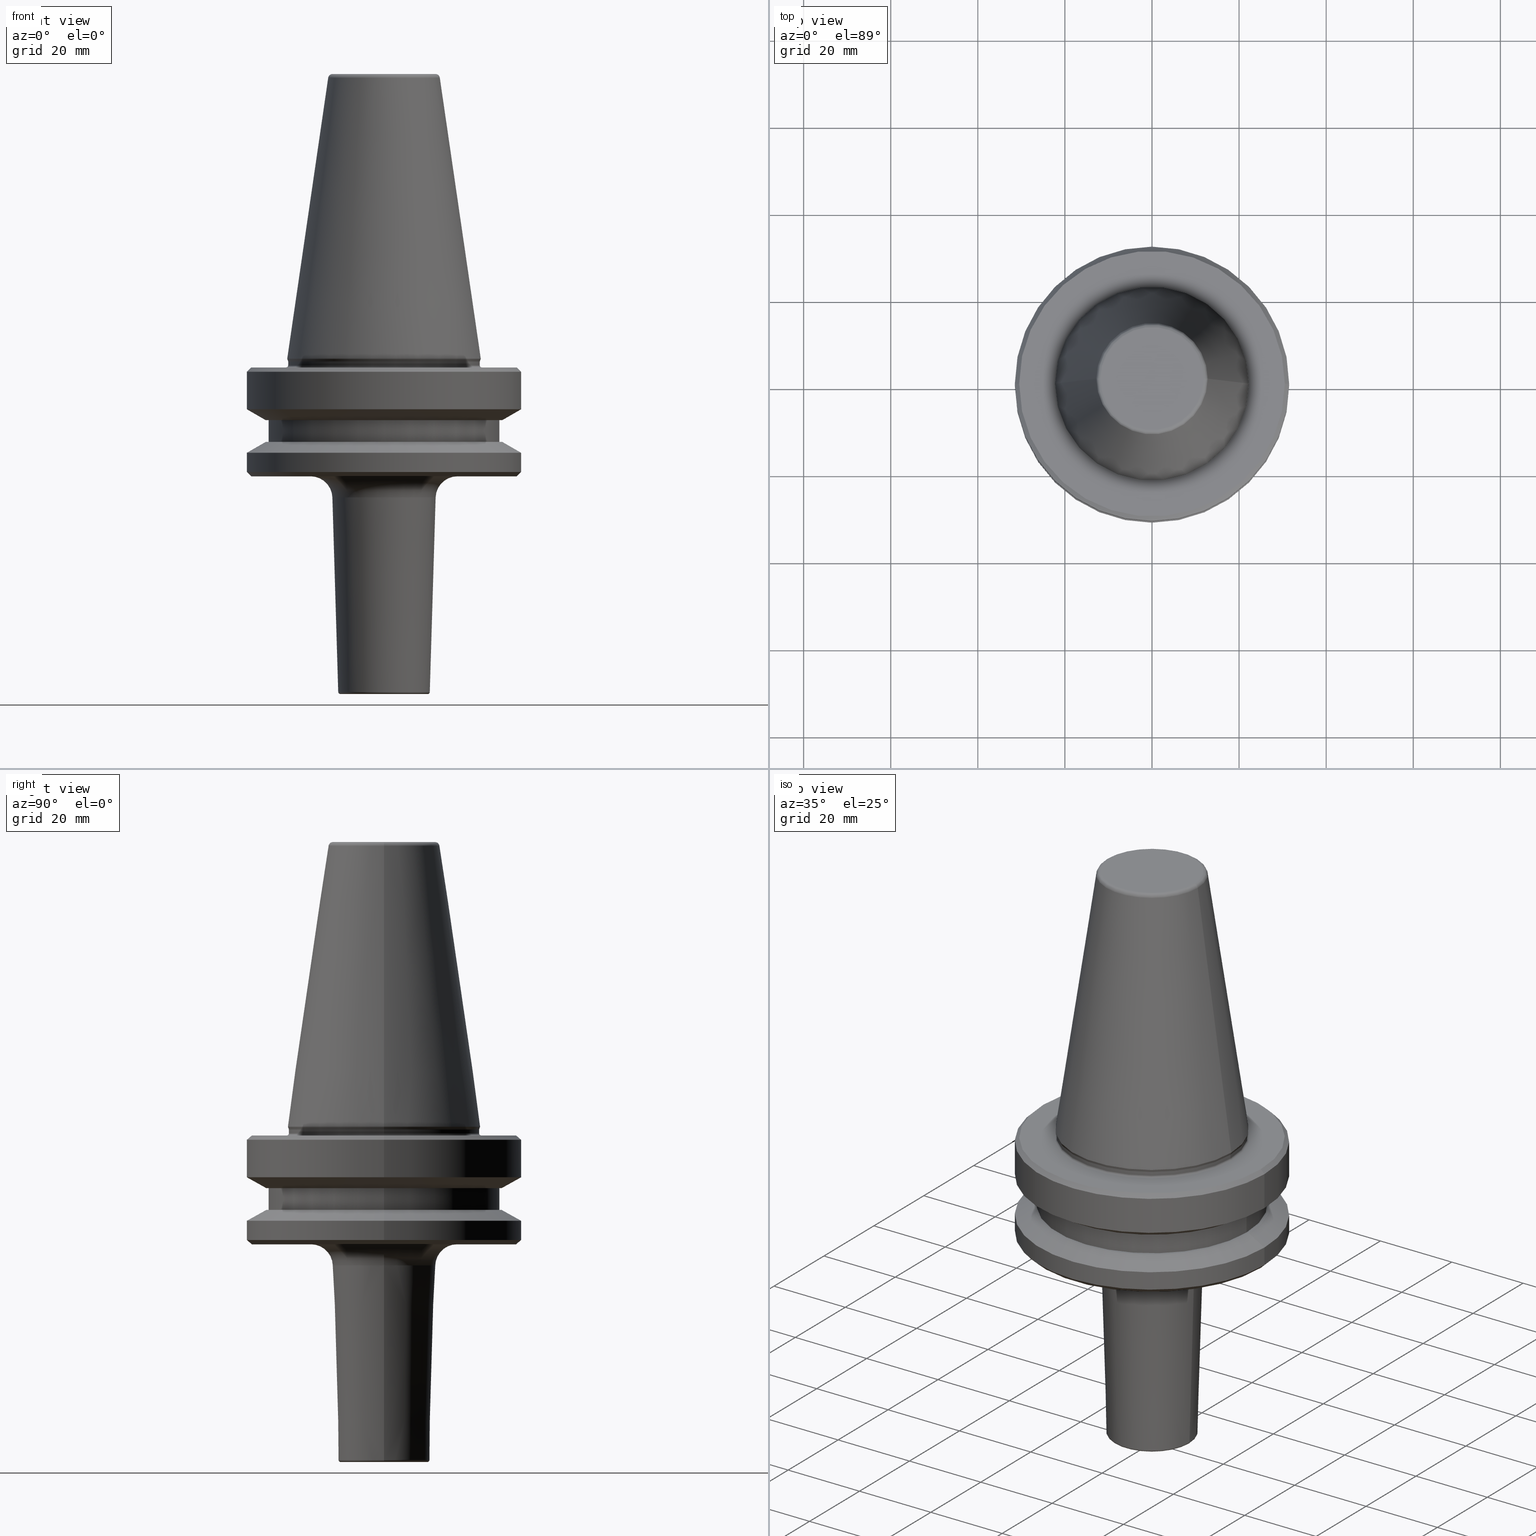
[diagram: canonical four-view strip — front | top / right | iso, engineering-drawing reading convention]
A machine part, canonical four-view strip (front | top / right | iso — engineering-drawing reading convention). The complete STEP part file that produces these views, byte-faithful:
ISO-10303-21;
HEADER;
FILE_DESCRIPTION (( 'STEP AP203' ),
    '1' );
FILE_NAME ('BT40 MCA12 050 AD+B-2.5G 25000 SL.STEP',
    '2019-05-24T10:09:49',
    ( '' ),
    ( '' ),
    'SwSTEP 2.0',
    'SolidWorks 2014',
    '' );
FILE_SCHEMA (( 'CONFIG_CONTROL_DESIGN' ));
ENDSEC;

DATA;
#1 = DIRECTION ( 'NONE',  ( -1.000000000000000000, 0.0000000000000000000, 0.0000000000000000000 ) ) ;
#2 = VERTEX_POINT ( 'NONE', #9 ) ;
#3 = DIRECTION ( 'NONE',  ( 1.000000000000000000, 0.0000000000000000000, 0.0000000000000000000 ) ) ;
#4 = CYLINDRICAL_SURFACE ( 'NONE', #276, 26.50000000000019200 ) ;
#5 = EDGE_LOOP ( 'NONE', ( #308, #489, #906, #264 ) ) ;
#6 = FACE_OUTER_BOUND ( 'NONE', #227, .T. ) ;
#7 = ORIENTED_EDGE ( 'NONE', *, *, #591, .T. ) ;
#8 = FACE_BOUND ( 'NONE', #88, .T. ) ;
#9 = CARTESIAN_POINT ( 'NONE',  ( -10.51455020236339500, 1.287661024979848700E-015, -141.9149932545611300 ) ) ;
#10 = FACE_OUTER_BOUND ( 'NONE', #734, .T. ) ;
#11 = EDGE_CURVE ( 'NONE', #162, #450, #687, .T. ) ;
#12 = CARTESIAN_POINT ( 'NONE',  ( 0.0000000000000000000, 0.0000000000000000000, 6.357346922996331500 ) ) ;
#13 = DIRECTION ( 'NONE',  ( 1.000000000000000000, 0.0000000000000000000, 0.0000000000000000000 ) ) ;
#14 = ADVANCED_BREP_SHAPE_REPRESENTATION ( 'BT40 MCA12 050 AD+B-2.5G 25000 SL', ( #492, #1039 ), #981 ) ;
#15 = DIRECTION ( 'NONE',  ( 0.0000000000000000000, 0.0000000000000000000, -1.000000000000000000 ) ) ;
#16 = LINE ( 'NONE', #767, #639 ) ;
#17 = EDGE_CURVE ( 'NONE', #861, #655, #255, .T. ) ;
#18 = ORIENTED_EDGE ( 'NONE', *, *, #813, .T. ) ;
#19 = ORIENTED_EDGE ( 'NONE', *, *, #765, .T. ) ;
#20 = ADVANCED_FACE ( 'NONE', ( #38 ), #465, .F. ) ;
#21 = ORIENTED_EDGE ( 'NONE', *, *, #750, .T. ) ;
#22 = DIRECTION ( 'NONE',  ( -0.0000000000000000000, -0.0000000000000000000, 1.000000000000000000 ) ) ;
#23 = AXIS2_PLACEMENT_3D ( 'NONE', #957, #842, #550 ) ;
#24 = DIRECTION ( 'NONE',  ( 1.000000000000000000, 0.0000000000000000000, 0.0000000000000000000 ) ) ;
#25 = APPROVAL_PERSON_ORGANIZATION ( #244, #183, #214 ) ;
#26 = AXIS2_PLACEMENT_3D ( 'NONE', #990, #782, #819 ) ;
#27 = ORIENTED_EDGE ( 'NONE', *, *, #972, .T. ) ;
#28 = CARTESIAN_POINT ( 'NONE',  ( -26.50000000000019200, 3.245314017740509400E-015, -79.50000000000012800 ) ) ;
#29 = AXIS2_PLACEMENT_3D ( 'NONE', #105, #31, #923 ) ;
#30 = CIRCLE ( 'NONE', #793, 26.50000000000019200 ) ;
#31 = DIRECTION ( 'NONE',  ( -0.0000000000000000000, -0.0000000000000000000, 1.000000000000000000 ) ) ;
#32 = EDGE_CURVE ( 'NONE', #795, #1036, #905, .T. ) ;
#33 = CARTESIAN_POINT ( 'NONE',  ( 0.0000000000000000000, 0.0000000000000000000, -92.40000000000802100 ) ) ;
#34 = CIRCLE ( 'NONE', #115, 0.4999999999996829800 ) ;
#35 = ORIENTED_EDGE ( 'NONE', *, *, #934, .F. ) ;
#36 = EDGE_LOOP ( 'NONE', ( #722, #280, #84, #791 ) ) ;
#37 = DIRECTION ( 'NONE',  ( 1.224646799147353200E-016, 1.000000000000000000, 0.0000000000000000000 ) ) ;
#38 = FACE_OUTER_BOUND ( 'NONE', #106, .T. ) ;
#39 = CARTESIAN_POINT ( 'NONE',  ( 31.50000000000008500, 0.0000000000000000000, -87.00014200631733300 ) ) ;
#40 = DIRECTION ( 'NONE',  ( -0.0000000000000000000, -0.0000000000000000000, 1.000000000000000000 ) ) ;
#41 =( NAMED_UNIT ( * ) SI_UNIT ( $, .STERADIAN. ) SOLID_ANGLE_UNIT ( ) );
#42 = ADVANCED_FACE ( 'NONE', ( #879 ), #440, .T. ) ;
#43 = CARTESIAN_POINT ( 'NONE',  ( 0.0000000000000000000, 0.0000000000000000000, -66.08871321165987900 ) ) ;
#44 = CARTESIAN_POINT ( 'NONE',  ( -22.49999999999996400, 2.755455298081540400E-015, -66.90000000000040400 ) ) ;
#45 = CIRCLE ( 'NONE', #660, 31.50000000000008500 ) ;
#46 = AXIS2_PLACEMENT_3D ( 'NONE', #623, #219, #579 ) ;
#47 = CC_DESIGN_PERSON_AND_ORGANIZATION_ASSIGNMENT ( #841, #862, ( #612 ) ) ;
#48 = VERTEX_POINT ( 'NONE', #488 ) ;
#49 = ORIENTED_EDGE ( 'NONE', *, *, #851, .T. ) ;
#50 = ORIENTED_EDGE ( 'NONE', *, *, #578, .F. ) ;
#51 = ADVANCED_FACE ( 'NONE', ( #230 ), #735, .T. ) ;
#52 = CARTESIAN_POINT ( 'NONE',  ( -27.16962701892256100, 0.0000000000000000000, -84.50000000000068200 ) ) ;
#53 = COORDINATED_UNIVERSAL_TIME_OFFSET ( 5, 30, .AHEAD. ) ;
#54 = ORIENTED_EDGE ( 'NONE', *, *, #858, .F. ) ;
#55 = TOROIDAL_SURFACE ( 'NONE', #225, 22.40000000000019800, 0.4000000000001546800 ) ;
#56 = ORIENTED_EDGE ( 'NONE', *, *, #90, .F. ) ;
#57 = CARTESIAN_POINT ( 'NONE',  ( 22.22499999999993700, 0.0000000000000000000, -65.40000000000057400 ) ) ;
#58 = VERTEX_POINT ( 'NONE', #199 ) ;
#59 = DIRECTION ( 'NONE',  ( -0.0000000000000000000, -0.0000000000000000000, 1.000000000000000000 ) ) ;
#60 = CARTESIAN_POINT ( 'NONE',  ( 0.0000000000000000000, 0.0000000000000000000, -65.40000000000057400 ) ) ;
#61 = ORIENTED_EDGE ( 'NONE', *, *, #637, .T. ) ;
#62 = DIRECTION ( 'NONE',  ( 1.000000000000000000, 0.0000000000000000000, 0.0000000000000000000 ) ) ;
#63 = ORIENTED_EDGE ( 'NONE', *, *, #468, .F. ) ;
#64 = CARTESIAN_POINT ( 'NONE',  ( 0.0000000000000000000, 0.0000000000000000000, -97.40000000000803500 ) ) ;
#65 = EDGE_CURVE ( 'NONE', #845, #798, #662, .T. ) ;
#66 = CIRCLE ( 'NONE', #401, 11.82266927716813000 ) ;
#67 = ORIENTED_EDGE ( 'NONE', *, *, #913, .F. ) ;
#68 = ORIENTED_EDGE ( 'NONE', *, *, #616, .F. ) ;
#69 = ORIENTED_EDGE ( 'NONE', *, *, #254, .T. ) ;
#70 = ORIENTED_EDGE ( 'NONE', *, *, #616, .T. ) ;
#71 = ORIENTED_EDGE ( 'NONE', *, *, #360, .F. ) ;
#72 = CIRCLE ( 'NONE', #778, 11.85449797636584700 ) ;
#73 = DIRECTION ( 'NONE',  ( -0.0000000000000000000, -0.0000000000000000000, 1.000000000000000000 ) ) ;
#74 = EDGE_CURVE ( 'NONE', #154, #655, #633, .T. ) ;
#75 = ADVANCED_FACE ( 'NONE', ( #10 ), #396, .T. ) ;
#76 = DIRECTION ( 'NONE',  ( -0.0000000000000000000, -0.0000000000000000000, 1.000000000000000000 ) ) ;
#77 = LOCAL_TIME ( 15, 39, 49.00000000000000000, #296 ) ;
#78 = AXIS2_PLACEMENT_3D ( 'NONE', #908, #358, #316 ) ;
#79 = DIRECTION ( 'NONE',  ( -0.0000000000000000000, -0.0000000000000000000, 1.000000000000000000 ) ) ;
#80 = EDGE_LOOP ( 'NONE', ( #546, #548, #480, #976 ) ) ;
#81 = ADVANCED_FACE ( 'NONE', ( #853 ), #203, .T. ) ;
#82 = CONICAL_SURFACE ( 'NONE', #938, 22.22499999999993700, 0.3490658503994643600 ) ;
#83 = VERTEX_POINT ( 'NONE', #286 ) ;
#84 = ORIENTED_EDGE ( 'NONE', *, *, #813, .F. ) ;
#85 = DIRECTION ( 'NONE',  ( 1.000000000000000000, 0.0000000000000000000, 0.0000000000000000000 ) ) ;
#86 = ORIENTED_EDGE ( 'NONE', *, *, #318, .T. ) ;
#87 = EDGE_CURVE ( 'NONE', #948, #566, #1041, .T. ) ;
#88 = EDGE_LOOP ( 'NONE', ( #902, #593 ) ) ;
#89 = CC_DESIGN_APPROVAL ( #183, ( #612 ) ) ;
#90 = EDGE_CURVE ( 'NONE', #58, #835, #831, .T. ) ;
#91 = CIRCLE ( 'NONE', #880, 22.22499999999993700 ) ;
#92 = DIRECTION ( 'NONE',  ( 1.000000000000000000, 0.0000000000000000000, 0.0000000000000000000 ) ) ;
#93 = FACE_OUTER_BOUND ( 'NONE', #153, .T. ) ;
#94 = CARTESIAN_POINT ( 'NONE',  ( 0.0000000000000000000, 0.0000000000000000000, -76.99985799368391800 ) ) ;
#95 = ORIENTED_EDGE ( 'NONE', *, *, #771, .F. ) ;
#96 = FACE_OUTER_BOUND ( 'NONE', #891, .T. ) ;
#97 = CARTESIAN_POINT ( 'NONE',  ( 0.0000000000000000000, 0.0000000000000000000, -67.40000000000034700 ) ) ;
#98 = DIRECTION ( 'NONE',  ( 0.0000000000000000000, -1.000000000000000000, 0.0000000000000000000 ) ) ;
#99 = ORGANIZATION ( 'UNSPECIFIED', 'UNSPECIFIED', '' ) ;
#100 = DIRECTION ( 'NONE',  ( 1.000000000000000000, 0.0000000000000000000, 0.0000000000000000000 ) ) ;
#101 = ORIENTED_EDGE ( 'NONE', *, *, #420, .T. ) ;
#102 = APPROVAL ( #206, 'UNSPECIFIED' ) ;
#103 = EDGE_CURVE ( 'NONE', #410, #865, #418, .T. ) ;
#104 = FACE_OUTER_BOUND ( 'NONE', #1048, .T. ) ;
#105 = CARTESIAN_POINT ( 'NONE',  ( 0.0000000000000000000, 0.0000000000000000000, -91.40000000000037500 ) ) ;
#106 = EDGE_LOOP ( 'NONE', ( #656, #71, #298, #516 ) ) ;
#107 = DIRECTION ( 'NONE',  ( 0.1443081888881795900, 1.767265616126607700E-017, -0.9895327920891826600 ) ) ;
#108 = CLOSED_SHELL ( 'NONE', ( #336, #627, #557, #720, #495, #243, #112, #659, #453, #328, #208, #585, #178, #449, #485, #232, #978, #235, #607, #373, #125, #152, #477, #190, #288, #81, #535, #567, #20, #432, #560, #157, #314, #456, #838, #51, #42, #75 ) ) ;
#109 = EDGE_LOOP ( 'NONE', ( #211, #869, #1028, #54 ) ) ;
#110 = CARTESIAN_POINT ( 'NONE',  ( 0.0000000000000000000, 0.0000000000000000000, -67.40000000000034700 ) ) ;
#111 = CARTESIAN_POINT ( 'NONE',  ( -22.02412295168553100, 2.697177167680943700E-015, -65.95190515433003500 ) ) ;
#112 = ADVANCED_FACE ( 'NONE', ( #1014 ), #151, .T. ) ;
#113 = DIRECTION ( 'NONE',  ( -0.0000000000000000000, -0.0000000000000000000, 1.000000000000000000 ) ) ;
#114 = DIRECTION ( 'NONE',  ( 0.0000000000000000000, 0.0000000000000000000, -1.000000000000000000 ) ) ;
#115 = AXIS2_PLACEMENT_3D ( 'NONE', #744, #829, #491 ) ;
#116 = CARTESIAN_POINT ( 'NONE',  ( 22.00000000000002100, 0.0000000000000000000, 6.357346922996331500 ) ) ;
#117 = AXIS2_PLACEMENT_3D ( 'NONE', #1007, #355, #520 ) ;
#118 = CIRCLE ( 'NONE', #779, 31.50000000000008500 ) ;
#119 = DIRECTION ( 'NONE',  ( -0.0000000000000000000, -0.0000000000000000000, 1.000000000000000000 ) ) ;
#120 = FACE_OUTER_BOUND ( 'NONE', #408, .T. ) ;
#121 = APPLICATION_PROTOCOL_DEFINITION ( 'international standard', 'config_control_design', 1994, #701 ) ;
#122 = TOROIDAL_SURFACE ( 'NONE', #899, 22.40000000000019800, 0.4000000000001546800 ) ;
#123 = DIRECTION ( 'NONE',  ( 1.000000000000000000, 0.0000000000000000000, 0.0000000000000000000 ) ) ;
#124 = DIRECTION ( 'NONE',  ( 1.000000000000000000, 0.0000000000000000000, 0.0000000000000000000 ) ) ;
#125 = ADVANCED_FACE ( 'NONE', ( #603 ), #228, .T. ) ;
#126 = DIRECTION ( 'NONE',  ( -0.0000000000000000000, -0.0000000000000000000, 1.000000000000000000 ) ) ;
#127 = EDGE_CURVE ( 'NONE', #795, #1006, #577, .T. ) ;
#128 = DIRECTION ( 'NONE',  ( 1.000000000000000000, 0.0000000000000000000, 0.0000000000000000000 ) ) ;
#129 = EDGE_LOOP ( 'NONE', ( #247, #1019 ) ) ;
#130 = PERSON_AND_ORGANIZATION_ROLE ( 'design_owner' ) ;
#131 = DIRECTION ( 'NONE',  ( 1.000000000000000000, 0.0000000000000000000, 0.0000000000000000000 ) ) ;
#132 = AXIS2_PLACEMENT_3D ( 'NONE', #158, #242, #266 ) ;
#133 = CARTESIAN_POINT ( 'NONE',  ( 0.0000000000000000000, 0.0000000000000000000, -92.40000000000803500 ) ) ;
#134 = EDGE_LOOP ( 'NONE', ( #759, #540, #142, #518 ) ) ;
#135 = ORIENTED_EDGE ( 'NONE', *, *, #765, .F. ) ;
#136 = ORIENTED_EDGE ( 'NONE', *, *, #1040, .T. ) ;
#137 = DIRECTION ( 'NONE',  ( -0.0000000000000000000, -0.0000000000000000000, 1.000000000000000000 ) ) ;
#138 = APPROVAL_DATE_TIME ( #354, #539 ) ;
#139 = AXIS2_PLACEMENT_3D ( 'NONE', #509, #192, #685 ) ;
#140 = CARTESIAN_POINT ( 'NONE',  ( 0.0000000000000000000, 0.0000000000000000000, 6.357346922996331500 ) ) ;
#141 = VERTEX_POINT ( 'NONE', #857 ) ;
#142 = ORIENTED_EDGE ( 'NONE', *, *, #90, .T. ) ;
#143 = DIRECTION ( 'NONE',  ( -0.02998650910567107400, 3.672288239386304100E-018, 0.9995503035223666200 ) ) ;
#144 = LINE ( 'NONE', #811, #339 ) ;
#145 = DIRECTION ( 'NONE',  ( -0.0000000000000000000, -0.0000000000000000000, 1.000000000000000000 ) ) ;
#146 = FACE_OUTER_BOUND ( 'NONE', #1000, .T. ) ;
#147 = AXIS2_PLACEMENT_3D ( 'NONE', #337, #392, #985 ) ;
#148 = CARTESIAN_POINT ( 'NONE',  ( 0.0000000000000000000, -9.395743224328710700E-014, -92.40000000000803500 ) ) ;
#149 = FACE_OUTER_BOUND ( 'NONE', #551, .T. ) ;
#150 = CARTESIAN_POINT ( 'NONE',  ( 0.0000000000000000000, 0.0000000000000000000, -91.40000000000037500 ) ) ;
#151 = CYLINDRICAL_SURFACE ( 'NONE', #610, 22.00000000000002100 ) ;
#152 = ADVANCED_FACE ( 'NONE', ( #438, #8 ), #664, .T. ) ;
#153 = EDGE_LOOP ( 'NONE', ( #892, #1018, #502, #56 ) ) ;
#154 = VERTEX_POINT ( 'NONE', #803 ) ;
#155 = CARTESIAN_POINT ( 'NONE',  ( 0.0000000000000000000, 0.0000000000000000000, -79.50000000000012800 ) ) ;
#156 = VERTEX_POINT ( 'NONE', #601 ) ;
#157 = ADVANCED_FACE ( 'NONE', ( #1038 ), #600, .T. ) ;
#158 = CARTESIAN_POINT ( 'NONE',  ( 0.0000000000000000000, 0.0000000000000000000, -142.4000000000079900 ) ) ;
#159 = PRODUCT_RELATED_PRODUCT_CATEGORY ( 'detail', '', ( #672 ) ) ;
#160 = VERTEX_POINT ( 'NONE', #325 ) ;
#161 = DIRECTION ( 'NONE',  ( -0.0000000000000000000, -0.0000000000000000000, 1.000000000000000000 ) ) ;
#162 = VERTEX_POINT ( 'NONE', #340 ) ;
#163 = CARTESIAN_POINT ( 'NONE',  ( 0.0000000000000000000, 3.946562901008935700E-013, -142.4000000000080200 ) ) ;
#164 = APPROVAL_PERSON_ORGANIZATION ( #387, #539, #864 ) ;
#165 = CARTESIAN_POINT ( 'NONE',  ( 0.0000000000000000000, 0.0000000000000000000, -92.40000000000803500 ) ) ;
#166 = AXIS2_PLACEMENT_3D ( 'NONE', #403, #963, #515 ) ;
#167 = AXIS2_PLACEMENT_3D ( 'NONE', #148, #615, #215 ) ;
#168 = AXIS2_PLACEMENT_3D ( 'NONE', #727, #538, #439 ) ;
#169 = ORIENTED_EDGE ( 'NONE', *, *, #858, .T. ) ;
#170 = CARTESIAN_POINT ( 'NONE',  ( 0.0000000000000000000, 0.0000000000000000000, -66.90000000000040400 ) ) ;
#171 = FACE_OUTER_BOUND ( 'NONE', #939, .T. ) ;
#172 = CARTESIAN_POINT ( 'NONE',  ( -22.00000000000002100, 2.724839128102860200E-015, -66.90000000000040400 ) ) ;
#173 = VECTOR ( 'NONE', #743, 1000.000000000000000 ) ;
#174 = CARTESIAN_POINT ( 'NONE',  ( 0.0000000000000000000, 0.0000000000000000000, -0.8556918111122247000 ) ) ;
#175 = AXIS2_PLACEMENT_3D ( 'NONE', #275, #748, #928 ) ;
#176 = ORIENTED_EDGE ( 'NONE', *, *, #1040, .F. ) ;
#177 = CONICAL_SURFACE ( 'NONE', #270, 31.50000000000008500, 1.047197551196587000 ) ;
#178 = ADVANCED_FACE ( 'NONE', ( #417 ), #177, .T. ) ;
#179 = VECTOR ( 'NONE', #663, 1000.000000000000000 ) ;
#180 = CARTESIAN_POINT ( 'NONE',  ( 31.50000000000008500, 0.0000000000000000000, -91.40000000000037500 ) ) ;
#181 = CIRCLE ( 'NONE', #463, 0.4999999999996951300 ) ;
#182 = DIRECTION ( 'NONE',  ( 1.000000000000000000, 0.0000000000000000000, 0.0000000000000000000 ) ) ;
#183 = APPROVAL ( #788, 'UNSPECIFIED' ) ;
#184 = DIRECTION ( 'NONE',  ( -0.0000000000000000000, -0.0000000000000000000, 1.000000000000000000 ) ) ;
#185 = EDGE_CURVE ( 'NONE', #351, #681, #202, .T. ) ;
#186 = CARTESIAN_POINT ( 'NONE',  ( -31.50000000000008500, 0.0000000000000000000, -87.00014200631733300 ) ) ;
#187 = FACE_OUTER_BOUND ( 'NONE', #799, .T. ) ;
#188 = CARTESIAN_POINT ( 'NONE',  ( -16.85224949397768400, 2.063805340123237800E-015, -92.40000000000803500 ) ) ;
#189 = ORIENTED_EDGE ( 'NONE', *, *, #1053, .T. ) ;
#190 = ADVANCED_FACE ( 'NONE', ( #850, #631 ), #545, .F. ) ;
#191 = ORIENTED_EDGE ( 'NONE', *, *, #972, .F. ) ;
#192 = DIRECTION ( 'NONE',  ( 1.224646799147353200E-016, 1.000000000000000000, 0.0000000000000000000 ) ) ;
#193 = AXIS2_PLACEMENT_3D ( 'NONE', #1004, #411, #3 ) ;
#194 = COORDINATED_UNIVERSAL_TIME_OFFSET ( 5, 30, .AHEAD. ) ;
#195 = DIRECTION ( 'NONE',  ( -0.0000000000000000000, -0.0000000000000000000, 1.000000000000000000 ) ) ;
#196 = ORIENTED_EDGE ( 'NONE', *, *, #632, .F. ) ;
#197 = AXIS2_PLACEMENT_3D ( 'NONE', #772, #258, #932 ) ;
#198 = PLANE ( 'NONE',  #1052 ) ;
#199 = CARTESIAN_POINT ( 'NONE',  ( 30.49999999999241900, 0.0000000000000000000, -92.40000000000803500 ) ) ;
#200 = VECTOR ( 'NONE', #345, 1000.000000000000100 ) ;
#201 = CONICAL_SURFACE ( 'NONE', #641, 11.85449797636584700, 0.02999100485687798000 ) ;
#202 = CIRCLE ( 'NONE', #997, 22.00000000000002100 ) ;
#203 = CYLINDRICAL_SURFACE ( 'NONE', #26, 31.50000000000008500 ) ;
#204 = DIRECTION ( 'NONE',  ( -1.000000000000000000, 0.0000000000000000000, 0.0000000000000000000 ) ) ;
#205 = EDGE_CURVE ( 'NONE', #1006, #888, #658, .T. ) ;
#206 = APPROVAL_STATUS ( 'not_yet_approved' ) ;
#207 = CARTESIAN_POINT ( 'NONE',  ( 0.0000000000000000000, 0.0000000000000000000, 6.357346922996331500 ) ) ;
#208 = ADVANCED_FACE ( 'NONE', ( #1012 ), #991, .T. ) ;
#209 = AXIS2_PLACEMENT_3D ( 'NONE', #376, #571, #131 ) ;
#210 =( LENGTH_UNIT ( ) NAMED_UNIT ( * ) SI_UNIT ( .MILLI., .METRE. ) );
#211 = ORIENTED_EDGE ( 'NONE', *, *, #360, .T. ) ;
#212 = CARTESIAN_POINT ( 'NONE',  ( -31.50000000000008500, 3.857637417314172900E-015, 6.357346922996331500 ) ) ;
#213 = VERTEX_POINT ( 'NONE', #706 ) ;
#214 = APPROVAL_ROLE ( '' ) ;
#215 = DIRECTION ( 'NONE',  ( 1.000000000000000000, 0.0000000000000000000, 0.0000000000000000000 ) ) ;
#216 = AXIS2_PLACEMENT_3D ( 'NONE', #602, #569, #85 ) ;
#217 = DATE_AND_TIME ( #426, #644 ) ;
#218 = EDGE_CURVE ( 'NONE', #845, #677, #369, .T. ) ;
#219 = DIRECTION ( 'NONE',  ( -0.0000000000000000000, -0.0000000000000000000, 1.000000000000000000 ) ) ;
#220 = ORIENTED_EDGE ( 'NONE', *, *, #11, .F. ) ;
#221 = CARTESIAN_POINT ( 'NONE',  ( -30.49999999999241900, 3.796405077356336000E-015, -92.40000000000803500 ) ) ;
#222 = DIRECTION ( 'NONE',  ( 1.000000000000000000, 0.0000000000000000000, 0.0000000000000000000 ) ) ;
#223 = CIRCLE ( 'NONE', #265, 10.51455020236340100 ) ;
#224 = DIRECTION ( 'NONE',  ( -0.7071067811865487900, 8.659560562354948900E-017, 0.7071067811865463500 ) ) ;
#225 = AXIS2_PLACEMENT_3D ( 'NONE', #1042, #667, #128 ) ;
#226 = FACE_OUTER_BOUND ( 'NONE', #543, .T. ) ;
#227 = EDGE_LOOP ( 'NONE', ( #1055, #331, #19, #890 ) ) ;
#228 = CONICAL_SURFACE ( 'NONE', #785, 31.50000000000008500, 1.047197551196587000 ) ;
#229 = CARTESIAN_POINT ( 'NONE',  ( 0.0000000000000000000, 0.0000000000000000000, -84.50000000000068200 ) ) ;
#230 = FACE_OUTER_BOUND ( 'NONE', #650, .T. ) ;
#231 = DIRECTION ( 'NONE',  ( -0.0000000000000000000, -0.0000000000000000000, 1.000000000000000000 ) ) ;
#232 = ADVANCED_FACE ( 'NONE', ( #394 ), #830, .F. ) ;
#233 = EDGE_CURVE ( 'NONE', #1036, #795, #808, .T. ) ;
#234 = CARTESIAN_POINT ( 'NONE',  ( 0.0000000000000000000, 0.0000000000000000000, -66.90000000000040400 ) ) ;
#235 = ADVANCED_FACE ( 'NONE', ( #149, #343 ), #752, .F. ) ;
#236 = TOROIDAL_SURFACE ( 'NONE', #763, 16.85224949397768400, 5.000000000000010700 ) ;
#237 = CARTESIAN_POINT ( 'NONE',  ( 26.50000000000019200, 0.0000000000000000000, 6.357346922996331500 ) ) ;
#238 = AXIS2_PLACEMENT_3D ( 'NONE', #448, #137, #983 ) ;
#239 = VERTEX_POINT ( 'NONE', #832 ) ;
#240 = EDGE_CURVE ( 'NONE', #783, #239, #554, .T. ) ;
#241 = ORIENTED_EDGE ( 'NONE', *, *, #913, .T. ) ;
#242 = DIRECTION ( 'NONE',  ( -0.0000000000000000000, -0.0000000000000000000, 1.000000000000000000 ) ) ;
#243 = ADVANCED_FACE ( 'NONE', ( #970 ), #122, .F. ) ;
#244 = PERSON_AND_ORGANIZATION ( #635, #99 ) ;
#245 = DIRECTION ( 'NONE',  ( -1.000000000000000000, 0.0000000000000000000, 0.0000000000000000000 ) ) ;
#246 = DIRECTION ( 'NONE',  ( -0.0000000000000000000, -0.0000000000000000000, 1.000000000000000000 ) ) ;
#247 = ORIENTED_EDGE ( 'NONE', *, *, #452, .T. ) ;
#248 = FACE_BOUND ( 'NONE', #305, .T. ) ;
#249 = DIRECTION ( 'NONE',  ( 1.000000000000000000, 0.0000000000000000000, 0.0000000000000000000 ) ) ;
#250 = ORIENTED_EDGE ( 'NONE', *, *, #429, .F. ) ;
#251 = VECTOR ( 'NONE', #1001, 1000.000000000000000 ) ;
#252 = AXIS2_PLACEMENT_3D ( 'NONE', #946, #79, #700 ) ;
#253 = EDGE_LOOP ( 'NONE', ( #969, #262, #817, #50 ) ) ;
#254 = EDGE_CURVE ( 'NONE', #322, #677, #777, .T. ) ;
#255 = CIRCLE ( 'NONE', #665, 11.82266927716813000 ) ;
#256 = CARTESIAN_POINT ( 'NONE',  ( 30.49999999999997200, 3.735172737399423600E-015, -67.40000000000034700 ) ) ;
#257 = CIRCLE ( 'NONE', #1026, 22.49999999999996400 ) ;
#258 = DIRECTION ( 'NONE',  ( 0.0000000000000000000, -1.000000000000000000, 0.0000000000000000000 ) ) ;
#259 = EDGE_LOOP ( 'NONE', ( #697, #424, #784, #529 ) ) ;
#260 = ORIENTED_EDGE ( 'NONE', *, *, #907, .F. ) ;
#261 = DESIGN_CONTEXT ( 'detailed design', #701, 'design' ) ;
#262 = ORIENTED_EDGE ( 'NONE', *, *, #824, .T. ) ;
#263 = ORIENTED_EDGE ( 'NONE', *, *, #572, .T. ) ;
#264 = ORIENTED_EDGE ( 'NONE', *, *, #805, .F. ) ;
#265 = AXIS2_PLACEMENT_3D ( 'NONE', #994, #532, #307 ) ;
#266 = DIRECTION ( 'NONE',  ( 1.000000000000000000, 0.0000000000000000000, 0.0000000000000000000 ) ) ;
#267 = CARTESIAN_POINT ( 'NONE',  ( 11.82266927716813000, 0.0000000000000000000, -4.440892098500626200E-013 ) ) ;
#268 = DIRECTION ( 'NONE',  ( -1.000000000000000000, 0.0000000000000000000, 0.0000000000000000000 ) ) ;
#269 = PERSON_AND_ORGANIZATION ( #635, #99 ) ;
#270 = AXIS2_PLACEMENT_3D ( 'NONE', #503, #789, #204 ) ;
#271 = EDGE_LOOP ( 'NONE', ( #608, #136 ) ) ;
#272 = DIRECTION ( 'NONE',  ( 1.000000000000000000, 0.0000000000000000000, 0.0000000000000000000 ) ) ;
#273 = CARTESIAN_POINT ( 'NONE',  ( 0.0000000000000000000, 0.0000000000000000000, -91.40000000000037500 ) ) ;
#274 = CONICAL_SURFACE ( 'NONE', #301, 30.49999999999997200, 0.7853981633974482800 ) ;
#275 = CARTESIAN_POINT ( 'NONE',  ( 0.0000000000000000000, 0.0000000000000000000, -79.50000000000012800 ) ) ;
#276 = AXIS2_PLACEMENT_3D ( 'NONE', #12, #282, #365 ) ;
#277 = EDGE_LOOP ( 'NONE', ( #250, #382, #189, #1046 ) ) ;
#278 = DIRECTION ( 'NONE',  ( 1.000000000000000000, 0.0000000000000000000, 0.0000000000000000000 ) ) ;
#279 = CARTESIAN_POINT ( 'NONE',  ( 0.0000000000000000000, 0.0000000000000000000, -1.000000000000334000 ) ) ;
#280 = ORIENTED_EDGE ( 'NONE', *, *, #712, .T. ) ;
#281 = CARTESIAN_POINT ( 'NONE',  ( -11.82266927716813000, 1.508450817090336800E-015, -4.440892098500626200E-013 ) ) ;
#282 = DIRECTION ( 'NONE',  ( -0.0000000000000000000, -0.0000000000000000000, 1.000000000000000000 ) ) ;
#283 = DIRECTION ( 'NONE',  ( -0.0000000000000000000, -0.0000000000000000000, 1.000000000000000000 ) ) ;
#284 = EDGE_CURVE ( 'NONE', #798, #351, #530, .T. ) ;
#285 = CIRCLE ( 'NONE', #139, 5.000000000000011500 ) ;
#286 = CARTESIAN_POINT ( 'NONE',  ( 31.50000000000008500, 0.0000000000000000000, -76.99985799368391800 ) ) ;
#287 = CYLINDRICAL_SURFACE ( 'NONE', #377, 26.50000000000019200 ) ;
#288 = ADVANCED_FACE ( 'NONE', ( #96 ), #916, .T. ) ;
#289 = ORIENTED_EDGE ( 'NONE', *, *, #330, .F. ) ;
#290 = ORIENTED_EDGE ( 'NONE', *, *, #240, .F. ) ;
#291 = ORIENTED_EDGE ( 'NONE', *, *, #934, .T. ) ;
#292 = FACE_OUTER_BOUND ( 'NONE', #733, .T. ) ;
#293 = APPLICATION_PROTOCOL_DEFINITION ( 'international standard', 'config_control_design', 1994, #1020 ) ;
#294 = VERTEX_POINT ( 'NONE', #965 ) ;
#295 = EDGE_CURVE ( 'NONE', #723, #410, #504, .T. ) ;
#296 = COORDINATED_UNIVERSAL_TIME_OFFSET ( 5, 30, .AHEAD. ) ;
#297 = PERSON_AND_ORGANIZATION_ROLE ( 'design_supplier' ) ;
#298 = ORIENTED_EDGE ( 'NONE', *, *, #541, .T. ) ;
#299 = DIRECTION ( 'NONE',  ( 0.0000000000000000000, -1.000000000000000000, 0.0000000000000000000 ) ) ;
#300 = ORIENTED_EDGE ( 'NONE', *, *, #74, .T. ) ;
#301 = AXIS2_PLACEMENT_3D ( 'NONE', #110, #399, #486 ) ;
#302 = CARTESIAN_POINT ( 'NONE',  ( 0.0000000000000000000, 0.0000000000000000000, 0.0000000000000000000 ) ) ;
#303 = CIRCLE ( 'NONE', #657, 22.22499999999993700 ) ;
#304 = DIRECTION ( 'NONE',  ( 1.000000000000000000, 0.0000000000000000000, 0.0000000000000000000 ) ) ;
#305 = EDGE_LOOP ( 'NONE', ( #63, #931 ) ) ;
#306 = DIRECTION ( 'NONE',  ( -0.0000000000000000000, -0.0000000000000000000, 1.000000000000000000 ) ) ;
#307 = DIRECTION ( 'NONE',  ( 1.000000000000000000, 0.0000000000000000000, 0.0000000000000000000 ) ) ;
#308 = ORIENTED_EDGE ( 'NONE', *, *, #732, .T. ) ;
#309 = AXIS2_PLACEMENT_3D ( 'NONE', #996, #962, #390 ) ;
#310 = ORIENTED_EDGE ( 'NONE', *, *, #661, .F. ) ;
#311 = CARTESIAN_POINT ( 'NONE',  ( 0.0000000000000000000, 0.0000000000000000000, -67.40000000000034700 ) ) ;
#312 = CARTESIAN_POINT ( 'NONE',  ( -31.50000000000008500, 3.857637417314172900E-015, -68.40000000000046000 ) ) ;
#313 = EDGE_CURVE ( 'NONE', #865, #410, #72, .T. ) ;
#314 = ADVANCED_FACE ( 'NONE', ( #942 ), #460, .T. ) ;
#315 = CC_DESIGN_PERSON_AND_ORGANIZATION_ASSIGNMENT ( #945, #130, ( #672 ) ) ;
#316 = DIRECTION ( 'NONE',  ( 1.000000000000000000, 0.0000000000000000000, 0.0000000000000000000 ) ) ;
#317 = LINE ( 'NONE', #431, #966 ) ;
#318 = EDGE_CURVE ( 'NONE', #681, #351, #475, .T. ) ;
#319 = VERTEX_POINT ( 'NONE', #312 ) ;
#320 = TOROIDAL_SURFACE ( 'NONE', #754, 11.82266927716813000, 0.9999999999999696900 ) ;
#321 = CARTESIAN_POINT ( 'NONE',  ( -31.50000000000008500, 3.857637417314172900E-015, -76.99985799368391800 ) ) ;
#322 = VERTEX_POINT ( 'NONE', #668 ) ;
#323 = VECTOR ( 'NONE', #847, 1000.000000000000000 ) ;
#324 = VERTEX_POINT ( 'NONE', #364 ) ;
#325 = CARTESIAN_POINT ( 'NONE',  ( -30.49999999999997200, 0.0000000000000000000, -67.40000000000034700 ) ) ;
#326 = SHAPE_DEFINITION_REPRESENTATION ( #876, #14 ) ;
#327 = CIRCLE ( 'NONE', #395, 31.50000000000008500 ) ;
#328 = ADVANCED_FACE ( 'NONE', ( #292 ), #654, .T. ) ;
#329 = ORIENTED_EDGE ( 'NONE', *, *, #881, .F. ) ;
#330 = EDGE_CURVE ( 'NONE', #83, #1021, #873, .T. ) ;
#331 = ORIENTED_EDGE ( 'NONE', *, *, #929, .T. ) ;
#332 = ORIENTED_EDGE ( 'NONE', *, *, #1017, .F. ) ;
#333 = DIRECTION ( 'NONE',  ( -0.3420201433262311000, 4.188538737683878900E-017, 0.9396926207857037000 ) ) ;
#334 = ORIENTED_EDGE ( 'NONE', *, *, #17, .F. ) ;
#335 = ORIENTED_EDGE ( 'NONE', *, *, #528, .T. ) ;
#336 = ADVANCED_FACE ( 'NONE', ( #226 ), #201, .T. ) ;
#337 = CARTESIAN_POINT ( 'NONE',  ( 0.0000000000000000000, 0.0000000000000000000, -66.90000000000040400 ) ) ;
#338 = DIRECTION ( 'NONE',  ( -0.0000000000000000000, -0.0000000000000000000, 1.000000000000000000 ) ) ;
#339 = VECTOR ( 'NONE', #980, 1000.000000000000000 ) ;
#340 = CARTESIAN_POINT ( 'NONE',  ( -27.16962701892322600, 3.592478546794674900E-015, -79.50000000000012800 ) ) ;
#341 = CYLINDRICAL_SURFACE ( 'NONE', #209, 22.00000000000002100 ) ;
#342 = ORIENTED_EDGE ( 'NONE', *, *, #330, .T. ) ;
#343 = FACE_BOUND ( 'NONE', #129, .T. ) ;
#344 = DIRECTION ( 'NONE',  ( -0.0000000000000000000, -0.0000000000000000000, 1.000000000000000000 ) ) ;
#345 = DIRECTION ( 'NONE',  ( 0.8660254037844383700, 0.0000000000000000000, 0.5000000000000003300 ) ) ;
#346 = EDGE_CURVE ( 'NONE', #835, #156, #415, .T. ) ;
#347 = EDGE_LOOP ( 'NONE', ( #814, #513, #86, #739 ) ) ;
#348 = CARTESIAN_POINT ( 'NONE',  ( 27.16962701892322600, 0.0000000000000000000, -79.50000000000012800 ) ) ;
#349 = DIRECTION ( 'NONE',  ( -0.0000000000000000000, -0.0000000000000000000, 1.000000000000000000 ) ) ;
#350 = ORIENTED_EDGE ( 'NONE', *, *, #907, .T. ) ;
#351 = VERTEX_POINT ( 'NONE', #555 ) ;
#352 = EDGE_LOOP ( 'NONE', ( #792, #1031, #473, #471 ) ) ;
#353 = CARTESIAN_POINT ( 'NONE',  ( -11.82266927716813000, 1.447859408766170200E-015, -1.000000000000334000 ) ) ;
#354 = DATE_AND_TIME ( #568, #797 ) ;
#355 = DIRECTION ( 'NONE',  ( -0.0000000000000000000, -0.0000000000000000000, 1.000000000000000000 ) ) ;
#356 = AXIS2_PLACEMENT_3D ( 'NONE', #476, #37, #977 ) ;
#357 = AXIS2_PLACEMENT_3D ( 'NONE', #533, #299, #703 ) ;
#358 = DIRECTION ( 'NONE',  ( -0.0000000000000000000, -0.0000000000000000000, 1.000000000000000000 ) ) ;
#359 = ORIENTED_EDGE ( 'NONE', *, *, #284, .T. ) ;
#360 = EDGE_CURVE ( 'NONE', #213, #499, #629, .T. ) ;
#361 = PLANE ( 'NONE',  #993 ) ;
#362 = DATE_TIME_ROLE ( 'creation_date' ) ;
#363 = CIRCLE ( 'NONE', #764, 31.50000000000008500 ) ;
#364 = CARTESIAN_POINT ( 'NONE',  ( 16.85224949397768400, 0.0000000000000000000, -92.40000000000803500 ) ) ;
#365 = DIRECTION ( 'NONE',  ( 1.000000000000000000, 0.0000000000000000000, 0.0000000000000000000 ) ) ;
#366 = FACE_OUTER_BOUND ( 'NONE', #708, .T. ) ;
#367 = ORIENTED_EDGE ( 'NONE', *, *, #549, .T. ) ;
#368 = DIRECTION ( 'NONE',  ( -0.0000000000000000000, -0.0000000000000000000, 1.000000000000000000 ) ) ;
#369 = LINE ( 'NONE', #974, #575 ) ;
#370 = CARTESIAN_POINT ( 'NONE',  ( 0.0000000000000000000, 0.0000000000000000000, -76.99985799368391800 ) ) ;
#371 = EDGE_CURVE ( 'NONE', #141, #319, #849, .T. ) ;
#372 = DIRECTION ( 'NONE',  ( 1.000000000000000000, 0.0000000000000000000, 0.0000000000000000000 ) ) ;
#373 = ADVANCED_FACE ( 'NONE', ( #6 ), #393, .T. ) ;
#374 = VECTOR ( 'NONE', #1022, 1000.000000000000000 ) ;
#375 = DIRECTION ( 'NONE',  ( -0.0000000000000000000, -0.0000000000000000000, 1.000000000000000000 ) ) ;
#376 = CARTESIAN_POINT ( 'NONE',  ( 0.0000000000000000000, 0.0000000000000000000, 6.357346922996331500 ) ) ;
#377 = AXIS2_PLACEMENT_3D ( 'NONE', #140, #786, #877 ) ;
#378 = ORIENTED_EDGE ( 'NONE', *, *, #127, .T. ) ;
#379 = ORIENTED_EDGE ( 'NONE', *, *, #32, .F. ) ;
#380 = CARTESIAN_POINT ( 'NONE',  ( 0.0000000000000000000, 0.0000000000000000000, -97.40000000000803500 ) ) ;
#381 = PERSON_AND_ORGANIZATION_ROLE ( 'classification_officer' ) ;
#382 = ORIENTED_EDGE ( 'NONE', *, *, #240, .T. ) ;
#383 = DIRECTION ( 'NONE',  ( 1.000000000000000000, 0.0000000000000000000, 0.0000000000000000000 ) ) ;
#384 = AXIS2_PLACEMENT_3D ( 'NONE', #422, #500, #479 ) ;
#385 = CARTESIAN_POINT ( 'NONE',  ( 10.01477505060252000, 0.0000000000000000000, -141.9000000000083300 ) ) ;
#386 = EDGE_CURVE ( 'NONE', #622, #324, #827, .T. ) ;
#387 = PERSON_AND_ORGANIZATION ( #635, #99 ) ;
#388 = CARTESIAN_POINT ( 'NONE',  ( 0.0000000000000000000, 0.0000000000000000000, -141.9000000000083300 ) ) ;
#389 = ORIENTED_EDGE ( 'NONE', *, *, #103, .T. ) ;
#390 = DIRECTION ( 'NONE',  ( 1.000000000000000000, 0.0000000000000000000, 0.0000000000000000000 ) ) ;
#391 = LINE ( 'NONE', #321, #1009 ) ;
#392 = DIRECTION ( 'NONE',  ( -0.0000000000000000000, -0.0000000000000000000, 1.000000000000000000 ) ) ;
#393 = CYLINDRICAL_SURFACE ( 'NONE', #193, 31.50000000000008500 ) ;
#394 = FACE_OUTER_BOUND ( 'NONE', #253, .T. ) ;
#395 = AXIS2_PLACEMENT_3D ( 'NONE', #826, #421, #909 ) ;
#396 = CONICAL_SURFACE ( 'NONE', #252, 11.85449797636584700, 0.02999100485687798000 ) ;
#397 = CIRCLE ( 'NONE', #419, 30.49999999999241900 ) ;
#398 = DIRECTION ( 'NONE',  ( -1.000000000000000000, 0.0000000000000000000, -0.0000000000000000000 ) ) ;
#399 = DIRECTION ( 'NONE',  ( 0.0000000000000000000, 0.0000000000000000000, -1.000000000000000000 ) ) ;
#400 = ORIENTED_EDGE ( 'NONE', *, *, #541, .F. ) ;
#401 = AXIS2_PLACEMENT_3D ( 'NONE', #922, #349, #272 ) ;
#402 = VECTOR ( 'NONE', #224, 1000.000000000000000 ) ;
#403 = CARTESIAN_POINT ( 'NONE',  ( 0.0000000000000000000, 0.0000000000000000000, -65.95190515433003500 ) ) ;
#404 = EDGE_CURVE ( 'NONE', #160, #319, #1034, .T. ) ;
#405 = ORIENTED_EDGE ( 'NONE', *, *, #490, .T. ) ;
#406 = CARTESIAN_POINT ( 'NONE',  ( 0.0000000000000000000, 0.0000000000000000000, -79.50000000000012800 ) ) ;
#407 = PERSON_AND_ORGANIZATION ( #635, #99 ) ;
#408 = EDGE_LOOP ( 'NONE', ( #1011, #27, #300, #334 ) ) ;
#409 = DIRECTION ( 'NONE',  ( 1.000000000000000000, 0.0000000000000000000, 0.0000000000000000000 ) ) ;
#410 = VERTEX_POINT ( 'NONE', #834 ) ;
#411 = DIRECTION ( 'NONE',  ( -0.0000000000000000000, -0.0000000000000000000, 1.000000000000000000 ) ) ;
#412 = FACE_OUTER_BOUND ( 'NONE', #134, .T. ) ;
#413 = CARTESIAN_POINT ( 'NONE',  ( -30.49999999999997200, 0.0000000000000000000, -67.40000000000034700 ) ) ;
#414 = EDGE_CURVE ( 'NONE', #156, #1006, #806, .T. ) ;
#415 = CIRCLE ( 'NONE', #29, 31.50000000000008500 ) ;
#416 = ORIENTED_EDGE ( 'NONE', *, *, #805, .T. ) ;
#417 = FACE_OUTER_BOUND ( 'NONE', #563, .T. ) ;
#418 = CIRCLE ( 'NONE', #589, 11.85449797636584700 ) ;
#419 = AXIS2_PLACEMENT_3D ( 'NONE', #133, #442, #124 ) ;
#420 = EDGE_CURVE ( 'NONE', #48, #1021, #1010, .T. ) ;
#421 = DIRECTION ( 'NONE',  ( -0.0000000000000000000, -0.0000000000000000000, 1.000000000000000000 ) ) ;
#422 = CARTESIAN_POINT ( 'NONE',  ( 0.0000000000000000000, 0.0000000000000000000, -87.00014200631733300 ) ) ;
#423 = LINE ( 'NONE', #542, #1044 ) ;
#424 = ORIENTED_EDGE ( 'NONE', *, *, #218, .T. ) ;
#425 = DIRECTION ( 'NONE',  ( 0.0000000000000000000, 0.0000000000000000000, -1.000000000000000000 ) ) ;
#426 = CALENDAR_DATE ( 2019, 24, 5 ) ;
#427 = CARTESIAN_POINT ( 'NONE',  ( 0.0000000000000000000, 0.0000000000000000000, -67.40000000000034700 ) ) ;
#428 = ORIENTED_EDGE ( 'NONE', *, *, #452, .F. ) ;
#429 = EDGE_CURVE ( 'NONE', #783, #2, #34, .T. ) ;
#430 = CARTESIAN_POINT ( 'NONE',  ( 26.50000000000019200, 0.0000000000000000000, -84.50000000000068200 ) ) ;
#431 = CARTESIAN_POINT ( 'NONE',  ( 31.50000000000008500, 0.0000000000000000000, 6.357346922996331500 ) ) ;
#432 = ADVANCED_FACE ( 'NONE', ( #146 ), #341, .T. ) ;
#433 = DIRECTION ( 'NONE',  ( -0.0000000000000000000, -0.0000000000000000000, 1.000000000000000000 ) ) ;
#434 = LINE ( 'NONE', #855, #846 ) ;
#435 = VECTOR ( 'NONE', #184, 1000.000000000000000 ) ;
#436 = ORIENTED_EDGE ( 'NONE', *, *, #716, .F. ) ;
#437 = ORIENTED_EDGE ( 'NONE', *, *, #414, .T. ) ;
#438 = FACE_OUTER_BOUND ( 'NONE', #875, .T. ) ;
#439 = DIRECTION ( 'NONE',  ( 1.000000000000000000, 0.0000000000000000000, 0.0000000000000000000 ) ) ;
#440 = TOROIDAL_SURFACE ( 'NONE', #995, 10.01477505060252000, 0.4999999999996821400 ) ;
#441 = DIRECTION ( 'NONE',  ( 0.0000000000000000000, 0.0000000000000000000, -1.000000000000000000 ) ) ;
#442 = DIRECTION ( 'NONE',  ( -0.0000000000000000000, -0.0000000000000000000, 1.000000000000000000 ) ) ;
#443 = CARTESIAN_POINT ( 'NONE',  ( -22.22499999999993700, 2.721777511104985000E-015, -65.40000000000057400 ) ) ;
#444 = AXIS2_PLACEMENT_3D ( 'NONE', #234, #126, #1043 ) ;
#445 = DIRECTION ( 'NONE',  ( 0.0000000000000000000, 0.0000000000000000000, -1.000000000000000000 ) ) ;
#446 = CIRCLE ( 'NONE', #787, 27.16962701892322600 ) ;
#447 = CARTESIAN_POINT ( 'NONE',  ( 31.50000000000008500, 0.0000000000000000000, 6.357346922996331500 ) ) ;
#448 = CARTESIAN_POINT ( 'NONE',  ( 0.0000000000000000000, 0.0000000000000000000, -79.50000000000012800 ) ) ;
#449 = ADVANCED_FACE ( 'NONE', ( #775 ), #968, .T. ) ;
#450 = VERTEX_POINT ( 'NONE', #348 ) ;
#451 = CARTESIAN_POINT ( 'NONE',  ( 22.49999999999996400, 0.0000000000000000000, -67.40000000000034700 ) ) ;
#452 = EDGE_CURVE ( 'NONE', #324, #622, #553, .T. ) ;
#453 = ADVANCED_FACE ( 'NONE', ( #366 ), #937, .T. ) ;
#454 = DATE_AND_TIME ( #676, #894 ) ;
#455 = DATE_TIME_ROLE ( 'classification_date' ) ;
#456 = ADVANCED_FACE ( 'NONE', ( #120 ), #320, .T. ) ;
#457 = CIRCLE ( 'NONE', #467, 5.000000000000004400 ) ;
#458 = DIRECTION ( 'NONE',  ( -0.0000000000000000000, -0.0000000000000000000, 1.000000000000000000 ) ) ;
#459 = CARTESIAN_POINT ( 'NONE',  ( 11.85449797636584700, 0.0000000000000000000, -97.25006745447970500 ) ) ;
#460 = CONICAL_SURFACE ( 'NONE', #519, 12.81220206925736900, 0.1448138077623198300 ) ;
#461 = ORIENTED_EDGE ( 'NONE', *, *, #318, .F. ) ;
#462 = ORIENTED_EDGE ( 'NONE', *, *, #694, .F. ) ;
#463 = AXIS2_PLACEMENT_3D ( 'NONE', #385, #624, #544 ) ;
#464 = DIRECTION ( 'NONE',  ( -0.0000000000000000000, -0.0000000000000000000, 1.000000000000000000 ) ) ;
#465 = TOROIDAL_SURFACE ( 'NONE', #444, 22.49999999999996400, 0.4999999999999449300 ) ;
#466 = CARTESIAN_POINT ( 'NONE',  ( -26.50000000000019200, 3.245314017740509400E-015, 6.357346922996331500 ) ) ;
#467 = AXIS2_PLACEMENT_3D ( 'NONE', #514, #522, #441 ) ;
#468 = EDGE_CURVE ( 'NONE', #1049, #558, #989, .T. ) ;
#469 = CIRCLE ( 'NONE', #959, 10.01477505060252100 ) ;
#470 = ORIENTED_EDGE ( 'NONE', *, *, #313, .F. ) ;
#471 = ORIENTED_EDGE ( 'NONE', *, *, #661, .T. ) ;
#472 = DIRECTION ( 'NONE',  ( 1.000000000000000000, 0.0000000000000000000, 0.0000000000000000000 ) ) ;
#473 = ORIENTED_EDGE ( 'NONE', *, *, #404, .T. ) ;
#474 = EDGE_LOOP ( 'NONE', ( #510, #191, #69, #21 ) ) ;
#475 = CIRCLE ( 'NONE', #919, 22.00000000000002100 ) ;
#476 = CARTESIAN_POINT ( 'NONE',  ( -22.40000000000019800, 2.743208830090095500E-015, -66.08871321165987900 ) ) ;
#477 = ADVANCED_FACE ( 'NONE', ( #747 ), #287, .T. ) ;
#478 = APPROVAL_DATE_TIME ( #702, #102 ) ;
#479 = DIRECTION ( 'NONE',  ( 1.000000000000000000, 0.0000000000000000000, 0.0000000000000000000 ) ) ;
#480 = ORIENTED_EDGE ( 'NONE', *, *, #508, .T. ) ;
#481 = SECURITY_CLASSIFICATION ( '', '', #949 ) ;
#482 = EDGE_CURVE ( 'NONE', #948, #823, #498, .T. ) ;
#483 = ORIENTED_EDGE ( 'NONE', *, *, #528, .F. ) ;
#484 = CIRCLE ( 'NONE', #197, 0.4999999999999449300 ) ;
#485 = ADVANCED_FACE ( 'NONE', ( #93 ), #537, .T. ) ;
#486 = DIRECTION ( 'NONE',  ( -1.000000000000000000, 0.0000000000000000000, 0.0000000000000000000 ) ) ;
#487 = ORIENTED_EDGE ( 'NONE', *, *, #982, .T. ) ;
#488 = CARTESIAN_POINT ( 'NONE',  ( 30.49999999999997200, 3.796405077356798300E-015, -67.40000000000034700 ) ) ;
#489 = ORIENTED_EDGE ( 'NONE', *, *, #482, .T. ) ;
#490 = EDGE_CURVE ( 'NONE', #141, #83, #757, .T. ) ;
#491 = DIRECTION ( 'NONE',  ( -1.000000000000000000, 1.224646799147352700E-016, 0.0000000000000000000 ) ) ;
#492 = MANIFOLD_SOLID_BREP ( 'Revolve1', #108 ) ;
#493 = DIRECTION ( 'NONE',  ( 1.224646799147353200E-016, 1.000000000000000000, 0.0000000000000000000 ) ) ;
#494 = DIRECTION ( 'NONE',  ( 1.000000000000000000, 0.0000000000000000000, 0.0000000000000000000 ) ) ;
#495 = ADVANCED_FACE ( 'NONE', ( #749 ), #82, .T. ) ;
#496 = CIRCLE ( 'NONE', #117, 30.49999999999997200 ) ;
#497 = CARTESIAN_POINT ( 'NONE',  ( 0.0000000000000000000, 0.0000000000000000000, -66.90000000000040400 ) ) ;
#498 = LINE ( 'NONE', #466, #526 ) ;
#499 = VERTEX_POINT ( 'NONE', #172 ) ;
#500 = DIRECTION ( 'NONE',  ( -0.0000000000000000000, -0.0000000000000000000, 1.000000000000000000 ) ) ;
#501 = ORIENTED_EDGE ( 'NONE', *, *, #870, .F. ) ;
#502 = ORIENTED_EDGE ( 'NONE', *, *, #346, .F. ) ;
#503 = CARTESIAN_POINT ( 'NONE',  ( 0.0000000000000000000, 0.0000000000000000000, -87.00014200631733300 ) ) ;
#504 = LINE ( 'NONE', #459, #724 ) ;
#505 = DIRECTION ( 'NONE',  ( -0.0000000000000000000, -0.0000000000000000000, 1.000000000000000000 ) ) ;
#506 = CARTESIAN_POINT ( 'NONE',  ( 0.0000000000000000000, 0.0000000000000000000, -97.25006745447970500 ) ) ;
#507 = APPROVAL_PERSON_ORGANIZATION ( #729, #102, #613 ) ;
#508 = EDGE_CURVE ( 'NONE', #872, #677, #303, .T. ) ;
#509 = CARTESIAN_POINT ( 'NONE',  ( -16.85224949397768400, 2.063805340123237800E-015, -97.40000000000803500 ) ) ;
#510 = ORIENTED_EDGE ( 'NONE', *, *, #595, .F. ) ;
#511 = FACE_OUTER_BOUND ( 'NONE', #758, .T. ) ;
#512 = ORIENTED_EDGE ( 'NONE', *, *, #649, .T. ) ;
#513 = ORIENTED_EDGE ( 'NONE', *, *, #632, .T. ) ;
#514 = CARTESIAN_POINT ( 'NONE',  ( 16.85224949397768400, 0.0000000000000000000, -97.40000000000803500 ) ) ;
#515 = DIRECTION ( 'NONE',  ( 1.000000000000000000, 0.0000000000000000000, 0.0000000000000000000 ) ) ;
#516 = ORIENTED_EDGE ( 'NONE', *, *, #468, .T. ) ;
#517 = CARTESIAN_POINT ( 'NONE',  ( 27.16962701892256100, 3.592478546794633900E-015, -84.50000000000068200 ) ) ;
#518 = ORIENTED_EDGE ( 'NONE', *, *, #929, .F. ) ;
#519 = AXIS2_PLACEMENT_3D ( 'NONE', #618, #425, #268 ) ;
#520 = DIRECTION ( 'NONE',  ( 1.000000000000000000, 0.0000000000000000000, 0.0000000000000000000 ) ) ;
#521 = ORIENTED_EDGE ( 'NONE', *, *, #205, .T. ) ;
#522 = DIRECTION ( 'NONE',  ( 0.0000000000000000000, -1.000000000000000000, 0.0000000000000000000 ) ) ;
#523 = DIRECTION ( 'NONE',  ( 0.0000000000000000000, 0.0000000000000000000, 1.000000000000000000 ) ) ;
#524 = DIRECTION ( 'NONE',  ( -1.000000000000000000, 0.0000000000000000000, -0.0000000000000000000 ) ) ;
#525 = CIRCLE ( 'NONE', #745, 30.49999999999241900 ) ;
#526 = VECTOR ( 'NONE', #975, 1000.000000000000000 ) ;
#527 = CARTESIAN_POINT ( 'NONE',  ( 0.0000000000000000000, 0.0000000000000000000, -97.25006745447970500 ) ) ;
#528 = EDGE_CURVE ( 'NONE', #888, #1006, #327, .T. ) ;
#529 = ORIENTED_EDGE ( 'NONE', *, *, #982, .F. ) ;
#530 = CIRCLE ( 'NONE', #604, 0.4000000000001502400 ) ;
#531 = DIRECTION ( 'NONE',  ( 0.0000000000000000000, -0.0000000000000000000, 1.000000000000000000 ) ) ;
#532 = DIRECTION ( 'NONE',  ( -0.0000000000000000000, -0.0000000000000000000, 1.000000000000000000 ) ) ;
#533 = CARTESIAN_POINT ( 'NONE',  ( 11.82266927716813000, 0.0000000000000000000, -1.000000000000334000 ) ) ;
#534 = ORIENTED_EDGE ( 'NONE', *, *, #11, .T. ) ;
#535 = ADVANCED_FACE ( 'NONE', ( #736 ), #274, .T. ) ;
#536 = CARTESIAN_POINT ( 'NONE',  ( 0.0000000000000000000, 0.0000000000000000000, -65.95190515433003500 ) ) ;
#537 = CONICAL_SURFACE ( 'NONE', #684, 31.50000000000008500, 0.7853981633974500600 ) ;
#538 = DIRECTION ( 'NONE',  ( -0.0000000000000000000, -0.0000000000000000000, 1.000000000000000000 ) ) ;
#539 = APPROVAL ( #954, 'UNSPECIFIED' ) ;
#540 = ORIENTED_EDGE ( 'NONE', *, *, #771, .T. ) ;
#541 = EDGE_CURVE ( 'NONE', #213, #1049, #484, .T. ) ;
#542 = CARTESIAN_POINT ( 'NONE',  ( 31.50000000000008500, 3.857637417314172900E-015, -87.00014200631733300 ) ) ;
#543 = EDGE_LOOP ( 'NONE', ( #7, #241, #915, #761 ) ) ;
#544 = DIRECTION ( 'NONE',  ( 0.0000000000000000000, 0.0000000000000000000, -1.000000000000000000 ) ) ;
#545 = PLANE ( 'NONE',  #175 ) ;
#546 = ORIENTED_EDGE ( 'NONE', *, *, #675, .F. ) ;
#547 = CARTESIAN_POINT ( 'NONE',  ( 0.0000000000000000000, 0.0000000000000000000, -142.4000000000079900 ) ) ;
#548 = ORIENTED_EDGE ( 'NONE', *, *, #595, .T. ) ;
#549 = EDGE_CURVE ( 'NONE', #499, #558, #709, .T. ) ;
#550 = DIRECTION ( 'NONE',  ( 1.000000000000000000, 0.0000000000000000000, 0.0000000000000000000 ) ) ;
#551 = EDGE_LOOP ( 'NONE', ( #740, #95 ) ) ;
#552 = FACE_OUTER_BOUND ( 'NONE', #80, .T. ) ;
#553 = CIRCLE ( 'NONE', #621, 16.85224949397768400 ) ;
#554 = CIRCLE ( 'NONE', #132, 10.01477505060252100 ) ;
#555 = CARTESIAN_POINT ( 'NONE',  ( 22.00000000000002100, 0.0000000000000000000, -66.08871321165987900 ) ) ;
#556 = CARTESIAN_POINT ( 'NONE',  ( 0.0000000000000000000, 0.0000000000000000000, -65.40000000000057400 ) ) ;
#557 = ADVANCED_FACE ( 'NONE', ( #924 ), #953, .T. ) ;
#558 = VERTEX_POINT ( 'NONE', #717 ) ;
#559 = EDGE_CURVE ( 'NONE', #2, #723, #901, .T. ) ;
#560 = ADVANCED_FACE ( 'NONE', ( #104 ), #55, .F. ) ;
#561 = DIRECTION ( 'NONE',  ( 1.000000000000000000, 0.0000000000000000000, 0.0000000000000000000 ) ) ;
#562 = ORIENTED_EDGE ( 'NONE', *, *, #750, .F. ) ;
#563 = EDGE_LOOP ( 'NONE', ( #897, #291, #335, #683 ) ) ;
#564 = CARTESIAN_POINT ( 'NONE',  ( 0.0000000000000000000, 0.0000000000000000000, -67.40000000000034700 ) ) ;
#565 = DIRECTION ( 'NONE',  ( 1.000000000000000000, 0.0000000000000000000, 0.0000000000000000000 ) ) ;
#566 = VERTEX_POINT ( 'NONE', #430 ) ;
#567 = ADVANCED_FACE ( 'NONE', ( #248, #679 ), #361, .F. ) ;
#568 = CALENDAR_DATE ( 2019, 24, 5 ) ;
#569 = DIRECTION ( 'NONE',  ( -0.0000000000000000000, -0.0000000000000000000, 1.000000000000000000 ) ) ;
#570 = CC_DESIGN_PERSON_AND_ORGANIZATION_ASSIGNMENT ( #269, #856, ( #867 ) ) ;
#571 = DIRECTION ( 'NONE',  ( -0.0000000000000000000, -0.0000000000000000000, 1.000000000000000000 ) ) ;
#572 = EDGE_CURVE ( 'NONE', #823, #294, #30, .T. ) ;
#573 = TOROIDAL_SURFACE ( 'NONE', #147, 22.49999999999996400, 0.4999999999999449300 ) ;
#574 = VECTOR ( 'NONE', #338, 1000.000000000000000 ) ;
#575 = VECTOR ( 'NONE', #333, 1000.000000000000000 ) ;
#576 = DIRECTION ( 'NONE',  ( 1.000000000000000000, 0.0000000000000000000, 0.0000000000000000000 ) ) ;
#577 = LINE ( 'NONE', #186, #810 ) ;
#578 = EDGE_CURVE ( 'NONE', #324, #410, #457, .T. ) ;
#579 = DIRECTION ( 'NONE',  ( 1.000000000000000000, 0.0000000000000000000, 0.0000000000000000000 ) ) ;
#580 = DIRECTION ( 'NONE',  ( -0.0000000000000000000, -0.0000000000000000000, 1.000000000000000000 ) ) ;
#581 = CARTESIAN_POINT ( 'NONE',  ( 0.0000000000000000000, 0.0000000000000000000, -97.25006745447970500 ) ) ;
#582 = DIRECTION ( 'NONE',  ( 1.000000000000000000, 0.0000000000000000000, 0.0000000000000000000 ) ) ;
#583 = ORIENTED_EDGE ( 'NONE', *, *, #591, .F. ) ;
#584 = DIRECTION ( 'NONE',  ( 1.000000000000000000, 0.0000000000000000000, 0.0000000000000000000 ) ) ;
#585 = ADVANCED_FACE ( 'NONE', ( #871 ), #4, .T. ) ;
#586 = CARTESIAN_POINT ( 'NONE',  ( 31.50000000000008500, 0.0000000000000000000, -91.40000000000037500 ) ) ;
#587 = ORIENTED_EDGE ( 'NONE', *, *, #870, .T. ) ;
#588 = CARTESIAN_POINT ( 'NONE',  ( 0.0000000000000000000, 0.0000000000000000000, -1.000000000000334000 ) ) ;
#589 = AXIS2_PLACEMENT_3D ( 'NONE', #527, #283, #854 ) ;
#590 = DATE_AND_TIME ( #820, #1024 ) ;
#591 = EDGE_CURVE ( 'NONE', #723, #2, #223, .T. ) ;
#592 = EDGE_LOOP ( 'NONE', ( #1008, #437, #483, #135 ) ) ;
#593 = ORIENTED_EDGE ( 'NONE', *, *, #87, .F. ) ;
#594 = CONICAL_SURFACE ( 'NONE', #998, 31.50000000000008500, 0.7853981633974500600 ) ;
#595 = EDGE_CURVE ( 'NONE', #154, #872, #434, .T. ) ;
#596 = DIRECTION ( 'NONE',  ( 1.000000000000000000, 0.0000000000000000000, 0.0000000000000000000 ) ) ;
#597 = VECTOR ( 'NONE', #822, 1000.000000000000000 ) ;
#598 = EDGE_LOOP ( 'NONE', ( #705, #61, #436, #68 ) ) ;
#599 = CARTESIAN_POINT ( 'NONE',  ( -11.85449797636584700, 1.757781320174379400E-015, -97.25006745447970500 ) ) ;
#600 = CONICAL_SURFACE ( 'NONE', #737, 22.22499999999993700, 0.3490658503994643600 ) ;
#601 = CARTESIAN_POINT ( 'NONE',  ( -31.50000000000008500, 3.857637417314172900E-015, -91.40000000000037500 ) ) ;
#602 = CARTESIAN_POINT ( 'NONE',  ( 0.0000000000000000000, 0.0000000000000000000, -92.40000000000802100 ) ) ;
#603 = FACE_OUTER_BOUND ( 'NONE', #912, .T. ) ;
#604 = AXIS2_PLACEMENT_3D ( 'NONE', #840, #98, #15 ) ;
#605 = CC_DESIGN_DATE_AND_TIME_ASSIGNMENT ( #454, #362, ( #867 ) ) ;
#606 = DIRECTION ( 'NONE',  ( 1.000000000000000000, 0.0000000000000000000, 0.0000000000000000000 ) ) ;
#607 = ADVANCED_FACE ( 'NONE', ( #412 ), #594, .T. ) ;
#608 = ORIENTED_EDGE ( 'NONE', *, *, #828, .T. ) ;
#609 = CARTESIAN_POINT ( 'NONE',  ( 0.0000000000000000000, 0.0000000000000000000, -4.440892098500626200E-013 ) ) ;
#610 = AXIS2_PLACEMENT_3D ( 'NONE', #207, #1005, #123 ) ;
#611 = LINE ( 'NONE', #1013, #402 ) ;
#612 = PRODUCT_DEFINITION_FORMATION_WITH_SPECIFIED_SOURCE ( 'ANY', '', #672, .NOT_KNOWN. ) ;
#613 = APPROVAL_ROLE ( '' ) ;
#614 = ORIENTED_EDGE ( 'NONE', *, *, #824, .F. ) ;
#615 = DIRECTION ( 'NONE',  ( 0.0000000000000000000, -0.0000000000000000000, 1.000000000000000000 ) ) ;
#616 = EDGE_CURVE ( 'NONE', #450, #83, #1032, .T. ) ;
#617 = ORIENTED_EDGE ( 'NONE', *, *, #482, .F. ) ;
#618 = CARTESIAN_POINT ( 'NONE',  ( 0.0000000000000000000, 0.0000000000000000000, -0.8556918111122247000 ) ) ;
#619 = DIRECTION ( 'NONE',  ( 1.000000000000000000, 0.0000000000000000000, 0.0000000000000000000 ) ) ;
#620 = PERSON_AND_ORGANIZATION ( #635, #99 ) ;
#621 = AXIS2_PLACEMENT_3D ( 'NONE', #33, #848, #606 ) ;
#622 = VERTEX_POINT ( 'NONE', #188 ) ;
#623 = CARTESIAN_POINT ( 'NONE',  ( 0.0000000000000000000, 0.0000000000000000000, -141.9149932545611300 ) ) ;
#624 = DIRECTION ( 'NONE',  ( 0.0000000000000000000, -1.000000000000000000, 0.0000000000000000000 ) ) ;
#625 = ORIENTED_EDGE ( 'NONE', *, *, #371, .T. ) ;
#626 = CIRCLE ( 'NONE', #356, 0.4000000000001536800 ) ;
#627 = ADVANCED_FACE ( 'NONE', ( #511 ), #825, .T. ) ;
#628 = CARTESIAN_POINT ( 'NONE',  ( 0.0000000000000000000, 0.0000000000000000000, -65.40000000000057400 ) ) ;
#629 = CIRCLE ( 'NONE', #728, 22.00000000000002100 ) ;
#630 = DIRECTION ( 'NONE',  ( 1.000000000000000000, 0.0000000000000000000, 0.0000000000000000000 ) ) ;
#631 = FACE_BOUND ( 'NONE', #713, .T. ) ;
#632 = EDGE_CURVE ( 'NONE', #845, #681, #626, .T. ) ;
#633 = CIRCLE ( 'NONE', #357, 0.9999999999999696900 ) ;
#634 = DIRECTION ( 'NONE',  ( 1.000000000000000000, 0.0000000000000000000, 0.0000000000000000000 ) ) ;
#635 = PERSON ( 'UNSPECIFIED', 'UNSPECIFIED', 'UNSPECIFIED', ('UNSPECIFIED'), ('UNSPECIFIED'), ('UNSPECIFIED') ) ;
#636 = CARTESIAN_POINT ( 'NONE',  ( 0.0000000000000000000, 0.0000000000000000000, -0.8556918111122247000 ) ) ;
#637 = EDGE_CURVE ( 'NONE', #162, #141, #391, .T. ) ;
#638 = DIRECTION ( 'NONE',  ( 0.0000000000000000000, 0.0000000000000000000, -1.000000000000000000 ) ) ;
#639 = VECTOR ( 'NONE', #143, 1000.000000000000100 ) ;
#640 = DIRECTION ( 'NONE',  ( -0.0000000000000000000, -0.0000000000000000000, 1.000000000000000000 ) ) ;
#641 = AXIS2_PLACEMENT_3D ( 'NONE', #581, #887, #951 ) ;
#642 = ORIENTED_EDGE ( 'NONE', *, *, #371, .F. ) ;
#643 = DIRECTION ( 'NONE',  ( -0.0000000000000000000, -0.0000000000000000000, 1.000000000000000000 ) ) ;
#644 = LOCAL_TIME ( 15, 39, 49.00000000000000000, #863 ) ;
#645 = DIRECTION ( 'NONE',  ( -0.0000000000000000000, -0.0000000000000000000, 1.000000000000000000 ) ) ;
#646 = AXIS2_PLACEMENT_3D ( 'NONE', #882, #718, #804 ) ;
#647 = DIRECTION ( 'NONE',  ( 1.000000000000000000, 0.0000000000000000000, 0.0000000000000000000 ) ) ;
#648 = DIRECTION ( 'NONE',  ( -1.000000000000000000, 1.224646799147353000E-016, 0.0000000000000000000 ) ) ;
#649 = EDGE_CURVE ( 'NONE', #294, #823, #652, .T. ) ;
#650 = EDGE_LOOP ( 'NONE', ( #501, #290 ) ) ;
#651 = DIRECTION ( 'NONE',  ( -0.0000000000000000000, -0.0000000000000000000, 1.000000000000000000 ) ) ;
#652 = CIRCLE ( 'NONE', #238, 26.50000000000019200 ) ;
#653 = DIRECTION ( 'NONE',  ( -0.0000000000000000000, -0.0000000000000000000, 1.000000000000000000 ) ) ;
#654 = CYLINDRICAL_SURFACE ( 'NONE', #78, 31.50000000000008500 ) ;
#655 = VERTEX_POINT ( 'NONE', #267 ) ;
#656 = ORIENTED_EDGE ( 'NONE', *, *, #549, .F. ) ;
#657 = AXIS2_PLACEMENT_3D ( 'NONE', #628, #682, #222 ) ;
#658 = CIRCLE ( 'NONE', #384, 31.50000000000008500 ) ;
#659 = ADVANCED_FACE ( 'NONE', ( #171 ), #573, .F. ) ;
#660 = AXIS2_PLACEMENT_3D ( 'NONE', #774, #306, #680 ) ;
#661 = EDGE_CURVE ( 'NONE', #319, #1021, #363, .T. ) ;
#662 = CIRCLE ( 'NONE', #837, 22.02412295168554100 ) ;
#663 = DIRECTION ( 'NONE',  ( 0.7071067811865487900, 0.0000000000000000000, 0.7071067811865463500 ) ) ;
#664 = PLANE ( 'NONE',  #866 ) ;
#665 = AXIS2_PLACEMENT_3D ( 'NONE', #609, #1050, #472 ) ;
#666 = VECTOR ( 'NONE', #868, 1000.000000000000000 ) ;
#667 = DIRECTION ( 'NONE',  ( -0.0000000000000000000, -0.0000000000000000000, 1.000000000000000000 ) ) ;
#668 = CARTESIAN_POINT ( 'NONE',  ( -12.81220206925736900, 0.0000000000000000000, -0.8556918111122247000 ) ) ;
#669 = ORIENTED_EDGE ( 'NONE', *, *, #295, .T. ) ;
#670 = EDGE_LOOP ( 'NONE', ( #642, #405, #342, #310 ) ) ;
#671 = AXIS2_PLACEMENT_3D ( 'NONE', #97, #638, #245 ) ;
#672 = PRODUCT ( 'BT40 MCA12 050 AD+B-2.5G 25000 SL', 'BT40 MCA12 050 AD+B-2.5G 25000 SL', '', ( #781 ) ) ;
#673 = CC_DESIGN_APPROVAL ( #539, ( #481 ) ) ;
#674 = DIRECTION ( 'NONE',  ( -0.8660254037844383700, 1.060575238724906500E-016, 0.5000000000000003300 ) ) ;
#675 = EDGE_CURVE ( 'NONE', #154, #322, #802, .T. ) ;
#676 = CALENDAR_DATE ( 2019, 24, 5 ) ;
#677 = VERTEX_POINT ( 'NONE', #443 ) ;
#678 = DIRECTION ( 'NONE',  ( -0.0000000000000000000, -0.0000000000000000000, 1.000000000000000000 ) ) ;
#679 = FACE_OUTER_BOUND ( 'NONE', #271, .T. ) ;
#680 = DIRECTION ( 'NONE',  ( 1.000000000000000000, 0.0000000000000000000, 0.0000000000000000000 ) ) ;
#681 = VERTEX_POINT ( 'NONE', #893 ) ;
#682 = DIRECTION ( 'NONE',  ( -0.0000000000000000000, -0.0000000000000000000, 1.000000000000000000 ) ) ;
#683 = ORIENTED_EDGE ( 'NONE', *, *, #127, .F. ) ;
#684 = AXIS2_PLACEMENT_3D ( 'NONE', #273, #246, #955 ) ;
#685 = DIRECTION ( 'NONE',  ( -1.000000000000000000, 1.224646799147353000E-016, 0.0000000000000000000 ) ) ;
#686 = AXIS2_PLACEMENT_3D ( 'NONE', #174, #944, #582 ) ;
#687 = CIRCLE ( 'NONE', #889, 27.16962701892322600 ) ;
#688 = CARTESIAN_POINT ( 'NONE',  ( 0.0000000000000000000, 0.0000000000000000000, -79.50000000000012800 ) ) ;
#689 = CARTESIAN_POINT ( 'NONE',  ( 0.0000000000000000000, 0.0000000000000000000, -65.40000000000057400 ) ) ;
#690 = CARTESIAN_POINT ( 'NONE',  ( 0.0000000000000000000, 0.0000000000000000000, 6.357346922996331500 ) ) ;
#691 = DIRECTION ( 'NONE',  ( 1.000000000000000000, 0.0000000000000000000, 0.0000000000000000000 ) ) ;
#692 = VECTOR ( 'NONE', #161, 1000.000000000000000 ) ;
#693 = DIRECTION ( 'NONE',  ( -1.000000000000000000, 0.0000000000000000000, 0.0000000000000000000 ) ) ;
#694 = EDGE_CURVE ( 'NONE', #499, #681, #144, .T. ) ;
#695 = DIRECTION ( 'NONE',  ( 1.000000000000000000, 0.0000000000000000000, 0.0000000000000000000 ) ) ;
#696 = EDGE_LOOP ( 'NONE', ( #329, #220 ) ) ;
#697 = ORIENTED_EDGE ( 'NONE', *, *, #790, .T. ) ;
#698 =( NAMED_UNIT ( * ) PLANE_ANGLE_UNIT ( ) SI_UNIT ( $, .RADIAN. ) );
#699 = CIRCLE ( 'NONE', #941, 30.49999999999997200 ) ;
#700 = DIRECTION ( 'NONE',  ( 1.000000000000000000, 0.0000000000000000000, 0.0000000000000000000 ) ) ;
#701 = APPLICATION_CONTEXT ( 'configuration controlled 3d designs of mechanical parts and assemblies' ) ;
#702 = DATE_AND_TIME ( #918, #77 ) ;
#703 = DIRECTION ( 'NONE',  ( 0.0000000000000000000, 0.0000000000000000000, -1.000000000000000000 ) ) ;
#704 = ORIENTED_EDGE ( 'NONE', *, *, #790, .F. ) ;
#705 = ORIENTED_EDGE ( 'NONE', *, *, #881, .T. ) ;
#706 = CARTESIAN_POINT ( 'NONE',  ( 22.00000000000002100, 0.0000000000000000000, -66.90000000000040400 ) ) ;
#707 = DIRECTION ( 'NONE',  ( 1.224646799147353200E-016, 1.000000000000000000, 0.0000000000000000000 ) ) ;
#708 = EDGE_LOOP ( 'NONE', ( #176, #101, #350, #960 ) ) ;
#709 = CIRCLE ( 'NONE', #973, 0.4999999999999449300 ) ;
#710 = CARTESIAN_POINT ( 'NONE',  ( -31.50000000000008500, 3.857637417314172900E-015, -87.00014200631733300 ) ) ;
#711 = ORIENTED_EDGE ( 'NONE', *, *, #32, .T. ) ;
#712 = EDGE_CURVE ( 'NONE', #322, #861, #773, .T. ) ;
#713 = EDGE_LOOP ( 'NONE', ( #512, #263 ) ) ;
#714 = CARTESIAN_POINT ( 'NONE',  ( 0.0000000000000000000, 0.0000000000000000000, -66.08871321165987900 ) ) ;
#715 = ORIENTED_EDGE ( 'NONE', *, *, #65, .T. ) ;
#716 = EDGE_CURVE ( 'NONE', #83, #141, #118, .T. ) ;
#717 = CARTESIAN_POINT ( 'NONE',  ( -22.49999999999996400, 2.755455298081540400E-015, -67.40000000000034700 ) ) ;
#718 = DIRECTION ( 'NONE',  ( -0.0000000000000000000, -0.0000000000000000000, 1.000000000000000000 ) ) ;
#719 = FACE_OUTER_BOUND ( 'NONE', #903, .T. ) ;
#720 = ADVANCED_FACE ( 'NONE', ( #552 ), #935, .T. ) ;
#721 = LINE ( 'NONE', #57, #374 ) ;
#722 = ORIENTED_EDGE ( 'NONE', *, *, #675, .T. ) ;
#723 = VERTEX_POINT ( 'NONE', #898 ) ;
#724 = VECTOR ( 'NONE', #836, 1000.000000000000100 ) ;
#725 = AXIS2_PLACEMENT_3D ( 'NONE', #741, #433, #780 ) ;
#726 = DIRECTION ( 'NONE',  ( -0.0000000000000000000, -0.0000000000000000000, 1.000000000000000000 ) ) ;
#727 = CARTESIAN_POINT ( 'NONE',  ( 0.0000000000000000000, 0.0000000000000000000, -84.50000000000068200 ) ) ;
#728 = AXIS2_PLACEMENT_3D ( 'NONE', #170, #653, #304 ) ;
#729 = PERSON_AND_ORGANIZATION ( #635, #99 ) ;
#730 = CC_DESIGN_DATE_AND_TIME_ASSIGNMENT ( #590, #455, ( #481 ) ) ;
#731 = AXIS2_PLACEMENT_3D ( 'NONE', #1033, #368, #630 ) ;
#732 = EDGE_CURVE ( 'NONE', #566, #948, #746, .T. ) ;
#733 = EDGE_LOOP ( 'NONE', ( #956, #625, #260, #289 ) ) ;
#734 = EDGE_LOOP ( 'NONE', ( #67, #936, #669, #470 ) ) ;
#735 = PLANE ( 'NONE',  #896 ) ;
#736 = FACE_OUTER_BOUND ( 'NONE', #352, .T. ) ;
#737 = AXIS2_PLACEMENT_3D ( 'NONE', #689, #119, #874 ) ;
#738 = CARTESIAN_POINT ( 'NONE',  ( -31.50000000000008500, 3.857637417314172900E-015, 6.357346922996331500 ) ) ;
#739 = ORIENTED_EDGE ( 'NONE', *, *, #284, .F. ) ;
#740 = ORIENTED_EDGE ( 'NONE', *, *, #1029, .F. ) ;
#741 = CARTESIAN_POINT ( 'NONE',  ( 0.0000000000000000000, 0.0000000000000000000, -84.50000000000068200 ) ) ;
#742 = ORIENTED_EDGE ( 'NONE', *, *, #185, .T. ) ;
#743 = DIRECTION ( 'NONE',  ( -0.7071067811865474600, 0.0000000000000000000, -0.7071067811865475700 ) ) ;
#744 = CARTESIAN_POINT ( 'NONE',  ( -10.01477505060252000, 1.226456220990115000E-015, -141.9000000000083300 ) ) ;
#745 = AXIS2_PLACEMENT_3D ( 'NONE', #165, #645, #565 ) ;
#746 = CIRCLE ( 'NONE', #168, 26.50000000000019200 ) ;
#747 = FACE_OUTER_BOUND ( 'NONE', #984, .T. ) ;
#748 = DIRECTION ( 'NONE',  ( 0.0000000000000000000, -0.0000000000000000000, 1.000000000000000000 ) ) ;
#749 = FACE_OUTER_BOUND ( 'NONE', #259, .T. ) ;
#750 = EDGE_CURVE ( 'NONE', #677, #872, #91, .T. ) ;
#751 = DIRECTION ( 'NONE',  ( 1.000000000000000000, 0.0000000000000000000, 0.0000000000000000000 ) ) ;
#752 = PLANE ( 'NONE',  #167 ) ;
#753 = DIRECTION ( 'NONE',  ( -0.8660254037844332700, 0.0000000000000000000, -0.5000000000000093300 ) ) ;
#754 = AXIS2_PLACEMENT_3D ( 'NONE', #588, #145, #249 ) ;
#755 = ORIENTED_EDGE ( 'NONE', *, *, #1053, .F. ) ;
#756 = AXIS2_PLACEMENT_3D ( 'NONE', #497, #762, #933 ) ;
#757 = CIRCLE ( 'NONE', #1037, 31.50000000000008500 ) ;
#758 = EDGE_LOOP ( 'NONE', ( #587, #815, #583, #755 ) ) ;
#759 = ORIENTED_EDGE ( 'NONE', *, *, #952, .F. ) ;
#760 = AXIS2_PLACEMENT_3D ( 'NONE', #1030, #821, #647 ) ;
#761 = ORIENTED_EDGE ( 'NONE', *, *, #295, .F. ) ;
#762 = DIRECTION ( 'NONE',  ( -0.0000000000000000000, -0.0000000000000000000, 1.000000000000000000 ) ) ;
#763 = AXIS2_PLACEMENT_3D ( 'NONE', #64, #76, #92 ) ;
#764 = AXIS2_PLACEMENT_3D ( 'NONE', #770, #113, #182 ) ;
#765 = EDGE_CURVE ( 'NONE', #835, #888, #317, .T. ) ;
#766 = DIRECTION ( 'NONE',  ( 1.000000000000000000, 0.0000000000000000000, 0.0000000000000000000 ) ) ;
#767 = CARTESIAN_POINT ( 'NONE',  ( -11.85449797636584700, 1.451757300225521200E-015, -97.25006745447970500 ) ) ;
#768 = ORIENTED_EDGE ( 'NONE', *, *, #17, .T. ) ;
#769 = AXIS2_PLACEMENT_3D ( 'NONE', #388, #726, #24 ) ;
#770 = CARTESIAN_POINT ( 'NONE',  ( 0.0000000000000000000, 0.0000000000000000000, -68.40000000000046000 ) ) ;
#771 = EDGE_CURVE ( 'NONE', #921, #58, #525, .T. ) ;
#772 = CARTESIAN_POINT ( 'NONE',  ( 22.49999999999996400, 0.0000000000000000000, -66.90000000000040400 ) ) ;
#773 = CIRCLE ( 'NONE', #1002, 0.9999999999999696900 ) ;
#774 = CARTESIAN_POINT ( 'NONE',  ( 0.0000000000000000000, 0.0000000000000000000, -68.40000000000046000 ) ) ;
#775 = FACE_OUTER_BOUND ( 'NONE', #592, .T. ) ;
#776 = CARTESIAN_POINT ( 'NONE',  ( 0.0000000000000000000, 0.0000000000000000000, -87.00014200631733300 ) ) ;
#777 = LINE ( 'NONE', #986, #323 ) ;
#778 = AXIS2_PLACEMENT_3D ( 'NONE', #506, #22, #584 ) ;
#779 = AXIS2_PLACEMENT_3D ( 'NONE', #979, #40, #844 ) ;
#780 = DIRECTION ( 'NONE',  ( 1.000000000000000000, 0.0000000000000000000, 0.0000000000000000000 ) ) ;
#781 = MECHANICAL_CONTEXT ( 'NONE', #1020, 'mechanical' ) ;
#782 = DIRECTION ( 'NONE',  ( -0.0000000000000000000, -0.0000000000000000000, 1.000000000000000000 ) ) ;
#783 = VERTEX_POINT ( 'NONE', #883 ) ;
#784 = ORIENTED_EDGE ( 'NONE', *, *, #508, .F. ) ;
#785 = AXIS2_PLACEMENT_3D ( 'NONE', #776, #943, #693 ) ;
#786 = DIRECTION ( 'NONE',  ( -0.0000000000000000000, -0.0000000000000000000, 1.000000000000000000 ) ) ;
#787 = AXIS2_PLACEMENT_3D ( 'NONE', #155, #1045, #62 ) ;
#788 = APPROVAL_STATUS ( 'not_yet_approved' ) ;
#789 = DIRECTION ( 'NONE',  ( 0.0000000000000000000, 0.0000000000000000000, -1.000000000000000000 ) ) ;
#790 = EDGE_CURVE ( 'NONE', #798, #845, #988, .T. ) ;
#791 = ORIENTED_EDGE ( 'NONE', *, *, #74, .F. ) ;
#792 = ORIENTED_EDGE ( 'NONE', *, *, #420, .F. ) ;
#793 = AXIS2_PLACEMENT_3D ( 'NONE', #688, #852, #596 ) ;
#794 = DIRECTION ( 'NONE',  ( -0.0000000000000000000, -0.0000000000000000000, 1.000000000000000000 ) ) ;
#795 = VERTEX_POINT ( 'NONE', #52 ) ;
#796 = AXIS2_PLACEMENT_3D ( 'NONE', #690, #195, #494 ) ;
#797 = LOCAL_TIME ( 15, 39, 49.00000000000000000, #1003 ) ;
#798 = VERTEX_POINT ( 'NONE', #971 ) ;
#799 = EDGE_LOOP ( 'NONE', ( #614, #428, #961, #389 ) ) ;
#800 = UNCERTAINTY_MEASURE_WITH_UNIT (LENGTH_MEASURE( 1.000000000000000100E-005 ), #210, 'distance_accuracy_value', 'NONE');
#801 = AXIS2_PLACEMENT_3D ( 'NONE', #380, #860, #561 ) ;
#802 = CIRCLE ( 'NONE', #895, 12.81220206925736900 ) ;
#803 = CARTESIAN_POINT ( 'NONE',  ( 12.81220206925736900, 2.145409868259749100E-015, -0.8556918111122247000 ) ) ;
#804 = DIRECTION ( 'NONE',  ( 1.000000000000000000, 0.0000000000000000000, 0.0000000000000000000 ) ) ;
#805 = EDGE_CURVE ( 'NONE', #566, #294, #910, .T. ) ;
#806 = LINE ( 'NONE', #738, #574 ) ;
#807 = DIRECTION ( 'NONE',  ( 1.000000000000000000, 0.0000000000000000000, 0.0000000000000000000 ) ) ;
#808 = CIRCLE ( 'NONE', #760, 27.16962701892256100 ) ;
#809 = DIRECTION ( 'NONE',  ( -1.000000000000000000, 1.224646799147354400E-016, 0.0000000000000000000 ) ) ;
#810 = VECTOR ( 'NONE', #753, 1000.000000000000000 ) ;
#811 = CARTESIAN_POINT ( 'NONE',  ( -22.00000000000002100, 2.694222958124179600E-015, 6.357346922996331500 ) ) ;
#812 = CC_DESIGN_PERSON_AND_ORGANIZATION_ASSIGNMENT ( #407, #381, ( #481 ) ) ;
#813 = EDGE_CURVE ( 'NONE', #655, #861, #66, .T. ) ;
#814 = ORIENTED_EDGE ( 'NONE', *, *, #65, .F. ) ;
#815 = ORIENTED_EDGE ( 'NONE', *, *, #429, .T. ) ;
#816 = ORIENTED_EDGE ( 'NONE', *, *, #218, .F. ) ;
#817 = ORIENTED_EDGE ( 'NONE', *, *, #313, .T. ) ;
#818 = ORIENTED_EDGE ( 'NONE', *, *, #233, .T. ) ;
#819 = DIRECTION ( 'NONE',  ( 1.000000000000000000, 0.0000000000000000000, 0.0000000000000000000 ) ) ;
#820 = CALENDAR_DATE ( 2019, 24, 5 ) ;
#821 = DIRECTION ( 'NONE',  ( -0.0000000000000000000, -0.0000000000000000000, 1.000000000000000000 ) ) ;
#822 = DIRECTION ( 'NONE',  ( 0.7071067811865474600, 8.659560562354931600E-017, -0.7071067811865475700 ) ) ;
#823 = VERTEX_POINT ( 'NONE', #28 ) ;
#824 = EDGE_CURVE ( 'NONE', #622, #865, #285, .T. ) ;
#825 = TOROIDAL_SURFACE ( 'NONE', #769, 10.01477505060252000, 0.4999999999996821400 ) ;
#826 = CARTESIAN_POINT ( 'NONE',  ( 0.0000000000000000000, 0.0000000000000000000, -87.00014200631733300 ) ) ;
#827 = CIRCLE ( 'NONE', #216, 16.85224949397768400 ) ;
#828 = EDGE_CURVE ( 'NONE', #160, #48, #496, .T. ) ;
#829 = DIRECTION ( 'NONE',  ( 1.224646799147353200E-016, 1.000000000000000000, 0.0000000000000000000 ) ) ;
#830 = TOROIDAL_SURFACE ( 'NONE', #801, 16.85224949397768400, 5.000000000000010700 ) ;
#831 = LINE ( 'NONE', #180, #179 ) ;
#832 = CARTESIAN_POINT ( 'NONE',  ( 10.01477505060252100, 0.0000000000000000000, -142.4000000000079900 ) ) ;
#833 = CIRCLE ( 'NONE', #686, 12.81220206925736900 ) ;
#834 = CARTESIAN_POINT ( 'NONE',  ( 11.85449797636584700, 0.0000000000000000000, -97.25006745447970500 ) ) ;
#835 = VERTEX_POINT ( 'NONE', #586 ) ;
#836 = DIRECTION ( 'NONE',  ( 0.02998650910567107400, 0.0000000000000000000, 0.9995503035223666200 ) ) ;
#837 = AXIS2_PLACEMENT_3D ( 'NONE', #536, #900, #409 ) ;
#838 = ADVANCED_FACE ( 'NONE', ( #719 ), #198, .F. ) ;
#839 = CARTESIAN_POINT ( 'NONE',  ( 0.0000000000000000000, 0.0000000000000000000, -4.440892098500626200E-013 ) ) ;
#840 = CARTESIAN_POINT ( 'NONE',  ( 22.40000000000019800, 0.0000000000000000000, -66.08871321165987900 ) ) ;
#841 = PERSON_AND_ORGANIZATION ( #635, #99 ) ;
#842 = DIRECTION ( 'NONE',  ( -0.0000000000000000000, -0.0000000000000000000, 1.000000000000000000 ) ) ;
#843 = ORIENTED_EDGE ( 'NONE', *, *, #1017, .T. ) ;
#844 = DIRECTION ( 'NONE',  ( 1.000000000000000000, 0.0000000000000000000, 0.0000000000000000000 ) ) ;
#845 = VERTEX_POINT ( 'NONE', #111 ) ;
#846 = VECTOR ( 'NONE', #107, 1000.000000000000000 ) ;
#847 = DIRECTION ( 'NONE',  ( -0.1443081888881795900, 0.0000000000000000000, -0.9895327920891826600 ) ) ;
#848 = DIRECTION ( 'NONE',  ( -0.0000000000000000000, -0.0000000000000000000, 1.000000000000000000 ) ) ;
#849 = LINE ( 'NONE', #212, #251 ) ;
#850 = FACE_OUTER_BOUND ( 'NONE', #696, .T. ) ;
#851 = EDGE_CURVE ( 'NONE', #558, #1049, #257, .T. ) ;
#852 = DIRECTION ( 'NONE',  ( -0.0000000000000000000, -0.0000000000000000000, 1.000000000000000000 ) ) ;
#853 = FACE_OUTER_BOUND ( 'NONE', #670, .T. ) ;
#854 = DIRECTION ( 'NONE',  ( 1.000000000000000000, 0.0000000000000000000, 0.0000000000000000000 ) ) ;
#855 = CARTESIAN_POINT ( 'NONE',  ( 12.81220206925736900, 1.569042225414513200E-015, -0.8556918111122247000 ) ) ;
#856 = PERSON_AND_ORGANIZATION_ROLE ( 'creator' ) ;
#857 = CARTESIAN_POINT ( 'NONE',  ( -31.50000000000008500, 3.857637417314172900E-015, -76.99985799368391800 ) ) ;
#858 = EDGE_CURVE ( 'NONE', #213, #351, #886, .T. ) ;
#859 = CIRCLE ( 'NONE', #731, 31.50000000000008500 ) ;
#860 = DIRECTION ( 'NONE',  ( -0.0000000000000000000, -0.0000000000000000000, 1.000000000000000000 ) ) ;
#861 = VERTEX_POINT ( 'NONE', #281 ) ;
#862 = PERSON_AND_ORGANIZATION_ROLE ( 'creator' ) ;
#863 = COORDINATED_UNIVERSAL_TIME_OFFSET ( 5, 30, .AHEAD. ) ;
#864 = APPROVAL_ROLE ( '' ) ;
#865 = VERTEX_POINT ( 'NONE', #599 ) ;
#866 = AXIS2_PLACEMENT_3D ( 'NONE', #229, #531, #383 ) ;
#867 = PRODUCT_DEFINITION ( 'UNKNOWN', '', #612, #261 ) ;
#868 = DIRECTION ( 'NONE',  ( -0.0000000000000000000, -0.0000000000000000000, 1.000000000000000000 ) ) ;
#869 = ORIENTED_EDGE ( 'NONE', *, *, #694, .T. ) ;
#870 = EDGE_CURVE ( 'NONE', #239, #783, #469, .T. ) ;
#871 = FACE_OUTER_BOUND ( 'NONE', #5, .T. ) ;
#872 = VERTEX_POINT ( 'NONE', #1016 ) ;
#873 = LINE ( 'NONE', #447, #435 ) ;
#874 = DIRECTION ( 'NONE',  ( 1.000000000000000000, 0.0000000000000000000, 0.0000000000000000000 ) ) ;
#875 = EDGE_LOOP ( 'NONE', ( #711, #818 ) ) ;
#876 = PRODUCT_DEFINITION_SHAPE ( 'NONE', 'NONE',  #867 ) ;
#877 = DIRECTION ( 'NONE',  ( 1.000000000000000000, 0.0000000000000000000, 0.0000000000000000000 ) ) ;
#878 = CC_DESIGN_APPROVAL ( #102, ( #867 ) ) ;
#879 = FACE_OUTER_BOUND ( 'NONE', #277, .T. ) ;
#880 = AXIS2_PLACEMENT_3D ( 'NONE', #556, #73, #1051 ) ;
#881 = EDGE_CURVE ( 'NONE', #450, #162, #446, .T. ) ;
#882 = CARTESIAN_POINT ( 'NONE',  ( 0.0000000000000000000, 0.0000000000000000000, -76.99985799368391800 ) ) ;
#883 = CARTESIAN_POINT ( 'NONE',  ( -10.01477505060252100, 1.257058622984981600E-015, -142.4000000000079900 ) ) ;
#884 = DIRECTION ( 'NONE',  ( 0.0000000000000000000, 0.0000000000000000000, -1.000000000000000000 ) ) ;
#885 = CC_DESIGN_SECURITY_CLASSIFICATION ( #481, ( #612 ) ) ;
#886 = LINE ( 'NONE', #116, #666 ) ;
#887 = DIRECTION ( 'NONE',  ( -0.0000000000000000000, -0.0000000000000000000, 1.000000000000000000 ) ) ;
#888 = VERTEX_POINT ( 'NONE', #39 ) ;
#889 = AXIS2_PLACEMENT_3D ( 'NONE', #406, #231, #807 ) ;
#890 = ORIENTED_EDGE ( 'NONE', *, *, #205, .F. ) ;
#891 = EDGE_LOOP ( 'NONE', ( #992, #534, #70, #927 ) ) ;
#892 = ORIENTED_EDGE ( 'NONE', *, *, #1029, .T. ) ;
#893 = CARTESIAN_POINT ( 'NONE',  ( -22.00000000000002100, 2.694222958124179600E-015, -66.08871321165987900 ) ) ;
#894 = LOCAL_TIME ( 15, 39, 49.00000000000000000, #53 ) ;
#895 = AXIS2_PLACEMENT_3D ( 'NONE', #636, #344, #13 ) ;
#896 = AXIS2_PLACEMENT_3D ( 'NONE', #163, #884, #398 ) ;
#897 = ORIENTED_EDGE ( 'NONE', *, *, #233, .F. ) ;
#898 = CARTESIAN_POINT ( 'NONE',  ( 10.51455020236339500, 0.0000000000000000000, -141.9149932545611300 ) ) ;
#899 = AXIS2_PLACEMENT_3D ( 'NONE', #43, #651, #911 ) ;
#900 = DIRECTION ( 'NONE',  ( -0.0000000000000000000, -0.0000000000000000000, 1.000000000000000000 ) ) ;
#901 = CIRCLE ( 'NONE', #46, 10.51455020236340100 ) ;
#902 = ORIENTED_EDGE ( 'NONE', *, *, #732, .F. ) ;
#903 = EDGE_LOOP ( 'NONE', ( #18, #768 ) ) ;
#904 = CARTESIAN_POINT ( 'NONE',  ( 0.0000000000000000000, 0.0000000000000000000, -0.8556918111122247000 ) ) ;
#905 = CIRCLE ( 'NONE', #725, 27.16962701892256100 ) ;
#906 = ORIENTED_EDGE ( 'NONE', *, *, #649, .F. ) ;
#907 = EDGE_CURVE ( 'NONE', #1021, #319, #45, .T. ) ;
#908 = CARTESIAN_POINT ( 'NONE',  ( 0.0000000000000000000, 0.0000000000000000000, 6.357346922996331500 ) ) ;
#909 = DIRECTION ( 'NONE',  ( 1.000000000000000000, 0.0000000000000000000, 0.0000000000000000000 ) ) ;
#910 = LINE ( 'NONE', #237, #692 ) ;
#911 = DIRECTION ( 'NONE',  ( 1.000000000000000000, 0.0000000000000000000, 0.0000000000000000000 ) ) ;
#912 = EDGE_LOOP ( 'NONE', ( #35, #379, #378, #521 ) ) ;
#913 = EDGE_CURVE ( 'NONE', #2, #865, #16, .T. ) ;
#914 = CARTESIAN_POINT ( 'NONE',  ( 0.0000000000000000000, 0.0000000000000000000, -141.9000000000083300 ) ) ;
#915 = ORIENTED_EDGE ( 'NONE', *, *, #103, .F. ) ;
#916 = CONICAL_SURFACE ( 'NONE', #646, 31.50000000000008500, 1.047197551196597400 ) ;
#917 = CARTESIAN_POINT ( 'NONE',  ( 31.50000000000008500, 0.0000000000000000000, -76.99985799368391800 ) ) ;
#918 = CALENDAR_DATE ( 2019, 24, 5 ) ;
#919 = AXIS2_PLACEMENT_3D ( 'NONE', #1035, #967, #920 ) ;
#920 = DIRECTION ( 'NONE',  ( 1.000000000000000000, 0.0000000000000000000, 0.0000000000000000000 ) ) ;
#921 = VERTEX_POINT ( 'NONE', #221 ) ;
#922 = CARTESIAN_POINT ( 'NONE',  ( 0.0000000000000000000, 0.0000000000000000000, -4.440892098500626200E-013 ) ) ;
#923 = DIRECTION ( 'NONE',  ( 1.000000000000000000, 0.0000000000000000000, 0.0000000000000000000 ) ) ;
#924 = FACE_OUTER_BOUND ( 'NONE', #36, .T. ) ;
#925 = AXIS2_PLACEMENT_3D ( 'NONE', #370, #375, #766 ) ;
#926 = DIRECTION ( 'NONE',  ( 0.0000000000000000000, 0.0000000000000000000, -1.000000000000000000 ) ) ;
#927 = ORIENTED_EDGE ( 'NONE', *, *, #490, .F. ) ;
#928 = DIRECTION ( 'NONE',  ( 1.000000000000000000, 0.0000000000000000000, 0.0000000000000000000 ) ) ;
#929 = EDGE_CURVE ( 'NONE', #156, #835, #859, .T. ) ;
#930 = CIRCLE ( 'NONE', #756, 22.00000000000002100 ) ;
#931 = ORIENTED_EDGE ( 'NONE', *, *, #851, .F. ) ;
#932 = DIRECTION ( 'NONE',  ( 0.0000000000000000000, 0.0000000000000000000, -1.000000000000000000 ) ) ;
#933 = DIRECTION ( 'NONE',  ( 1.000000000000000000, 0.0000000000000000000, 0.0000000000000000000 ) ) ;
#934 = EDGE_CURVE ( 'NONE', #1036, #888, #423, .T. ) ;
#935 = CONICAL_SURFACE ( 'NONE', #1023, 12.81220206925736900, 0.1448138077623198300 ) ;
#936 = ORIENTED_EDGE ( 'NONE', *, *, #559, .T. ) ;
#937 = CONICAL_SURFACE ( 'NONE', #671, 30.49999999999997200, 0.7853981633974482800 ) ;
#938 = AXIS2_PLACEMENT_3D ( 'NONE', #60, #794, #751 ) ;
#939 = EDGE_LOOP ( 'NONE', ( #332, #367, #49, #400 ) ) ;
#940 = DIRECTION ( 'NONE',  ( -1.000000000000000000, 0.0000000000000000000, -0.0000000000000000000 ) ) ;
#941 = AXIS2_PLACEMENT_3D ( 'NONE', #427, #580, #576 ) ;
#942 = FACE_OUTER_BOUND ( 'NONE', #474, .T. ) ;
#943 = DIRECTION ( 'NONE',  ( 0.0000000000000000000, 0.0000000000000000000, -1.000000000000000000 ) ) ;
#944 = DIRECTION ( 'NONE',  ( -0.0000000000000000000, -0.0000000000000000000, 1.000000000000000000 ) ) ;
#945 = PERSON_AND_ORGANIZATION ( #635, #99 ) ;
#946 = CARTESIAN_POINT ( 'NONE',  ( 0.0000000000000000000, 0.0000000000000000000, -97.25006745447970500 ) ) ;
#947 = DIRECTION ( 'NONE',  ( 1.000000000000000000, 0.0000000000000000000, 0.0000000000000000000 ) ) ;
#948 = VERTEX_POINT ( 'NONE', #958 ) ;
#949 = SECURITY_CLASSIFICATION_LEVEL ( 'unclassified' ) ;
#950 = ORIENTED_EDGE ( 'NONE', *, *, #572, .F. ) ;
#951 = DIRECTION ( 'NONE',  ( 1.000000000000000000, 0.0000000000000000000, 0.0000000000000000000 ) ) ;
#952 = EDGE_CURVE ( 'NONE', #921, #156, #611, .T. ) ;
#953 = TOROIDAL_SURFACE ( 'NONE', #1015, 11.82266927716813000, 0.9999999999999696900 ) ;
#954 = APPROVAL_STATUS ( 'not_yet_approved' ) ;
#955 = DIRECTION ( 'NONE',  ( 1.000000000000000000, 0.0000000000000000000, 0.0000000000000000000 ) ) ;
#956 = ORIENTED_EDGE ( 'NONE', *, *, #716, .T. ) ;
#957 = CARTESIAN_POINT ( 'NONE',  ( 0.0000000000000000000, 0.0000000000000000000, -67.40000000000034700 ) ) ;
#958 = CARTESIAN_POINT ( 'NONE',  ( -26.50000000000019200, 3.245314017740509400E-015, -84.50000000000068200 ) ) ;
#959 = AXIS2_PLACEMENT_3D ( 'NONE', #547, #458, #634 ) ;
#960 = ORIENTED_EDGE ( 'NONE', *, *, #404, .F. ) ;
#961 = ORIENTED_EDGE ( 'NONE', *, *, #578, .T. ) ;
#962 = DIRECTION ( 'NONE',  ( -0.0000000000000000000, -0.0000000000000000000, 1.000000000000000000 ) ) ;
#963 = DIRECTION ( 'NONE',  ( -0.0000000000000000000, -0.0000000000000000000, 1.000000000000000000 ) ) ;
#964 = DIRECTION ( 'NONE',  ( 0.8660254037844332700, 1.060575238724900300E-016, -0.5000000000000093300 ) ) ;
#965 = CARTESIAN_POINT ( 'NONE',  ( 26.50000000000019200, 0.0000000000000000000, -79.50000000000012800 ) ) ;
#966 = VECTOR ( 'NONE', #640, 1000.000000000000000 ) ;
#967 = DIRECTION ( 'NONE',  ( -0.0000000000000000000, -0.0000000000000000000, 1.000000000000000000 ) ) ;
#968 = CYLINDRICAL_SURFACE ( 'NONE', #796, 31.50000000000008500 ) ;
#969 = ORIENTED_EDGE ( 'NONE', *, *, #386, .F. ) ;
#970 = FACE_OUTER_BOUND ( 'NONE', #347, .T. ) ;
#971 = CARTESIAN_POINT ( 'NONE',  ( 22.02412295168553100, 0.0000000000000000000, -65.95190515433003500 ) ) ;
#972 = EDGE_CURVE ( 'NONE', #322, #154, #833, .T. ) ;
#973 = AXIS2_PLACEMENT_3D ( 'NONE', #44, #493, #809 ) ;
#974 = CARTESIAN_POINT ( 'NONE',  ( -22.22499999999993700, 2.721777511104985000E-015, -65.40000000000057400 ) ) ;
#975 = DIRECTION ( 'NONE',  ( -0.0000000000000000000, -0.0000000000000000000, 1.000000000000000000 ) ) ;
#976 = ORIENTED_EDGE ( 'NONE', *, *, #254, .F. ) ;
#977 = DIRECTION ( 'NONE',  ( -1.000000000000000000, 1.224646799147357600E-016, 0.0000000000000000000 ) ) ;
#978 = ADVANCED_FACE ( 'NONE', ( #187 ), #236, .F. ) ;
#979 = CARTESIAN_POINT ( 'NONE',  ( 0.0000000000000000000, 0.0000000000000000000, -76.99985799368391800 ) ) ;
#980 = DIRECTION ( 'NONE',  ( -0.0000000000000000000, -0.0000000000000000000, 1.000000000000000000 ) ) ;
#981 =( GEOMETRIC_REPRESENTATION_CONTEXT ( 3 ) GLOBAL_UNCERTAINTY_ASSIGNED_CONTEXT ( ( #800 ) ) GLOBAL_UNIT_ASSIGNED_CONTEXT ( ( #210, #698, #41 ) ) REPRESENTATION_CONTEXT ( 'NONE', 'WORKASPACE' ) );
#982 = EDGE_CURVE ( 'NONE', #798, #872, #721, .T. ) ;
#983 = DIRECTION ( 'NONE',  ( 1.000000000000000000, 0.0000000000000000000, 0.0000000000000000000 ) ) ;
#984 = EDGE_LOOP ( 'NONE', ( #617, #1025, #416, #950 ) ) ;
#985 = DIRECTION ( 'NONE',  ( 1.000000000000000000, 0.0000000000000000000, 0.0000000000000000000 ) ) ;
#986 = CARTESIAN_POINT ( 'NONE',  ( -12.81220206925736900, 0.0000000000000000000, -0.8556918111122247000 ) ) ;
#987 = EDGE_LOOP ( 'NONE', ( #816, #715, #487, #562 ) ) ;
#988 = CIRCLE ( 'NONE', #166, 22.02412295168554100 ) ;
#989 = CIRCLE ( 'NONE', #23, 22.49999999999996400 ) ;
#990 = CARTESIAN_POINT ( 'NONE',  ( 0.0000000000000000000, 0.0000000000000000000, 6.357346922996331500 ) ) ;
#991 = CONICAL_SURFACE ( 'NONE', #925, 31.50000000000008500, 1.047197551196597400 ) ;
#992 = ORIENTED_EDGE ( 'NONE', *, *, #637, .F. ) ;
#993 = AXIS2_PLACEMENT_3D ( 'NONE', #564, #114, #524 ) ;
#994 = CARTESIAN_POINT ( 'NONE',  ( 0.0000000000000000000, 0.0000000000000000000, -141.9149932545611300 ) ) ;
#995 = AXIS2_PLACEMENT_3D ( 'NONE', #914, #643, #947 ) ;
#996 = CARTESIAN_POINT ( 'NONE',  ( 0.0000000000000000000, 0.0000000000000000000, -84.50000000000068200 ) ) ;
#997 = AXIS2_PLACEMENT_3D ( 'NONE', #714, #59, #278 ) ;
#998 = AXIS2_PLACEMENT_3D ( 'NONE', #150, #678, #100 ) ;
#999 = CC_DESIGN_PERSON_AND_ORGANIZATION_ASSIGNMENT ( #620, #297, ( #612 ) ) ;
#1000 = EDGE_LOOP ( 'NONE', ( #462, #843, #169, #461 ) ) ;
#1001 = DIRECTION ( 'NONE',  ( -0.0000000000000000000, -0.0000000000000000000, 1.000000000000000000 ) ) ;
#1002 = AXIS2_PLACEMENT_3D ( 'NONE', #353, #707, #648 ) ;
#1003 = COORDINATED_UNIVERSAL_TIME_OFFSET ( 5, 30, .AHEAD. ) ;
#1004 = CARTESIAN_POINT ( 'NONE',  ( 0.0000000000000000000, 0.0000000000000000000, 6.357346922996331500 ) ) ;
#1005 = DIRECTION ( 'NONE',  ( -0.0000000000000000000, -0.0000000000000000000, 1.000000000000000000 ) ) ;
#1006 = VERTEX_POINT ( 'NONE', #710 ) ;
#1007 = CARTESIAN_POINT ( 'NONE',  ( 0.0000000000000000000, 0.0000000000000000000, -67.40000000000034700 ) ) ;
#1008 = ORIENTED_EDGE ( 'NONE', *, *, #346, .T. ) ;
#1009 = VECTOR ( 'NONE', #674, 1000.000000000000100 ) ;
#1010 = LINE ( 'NONE', #256, #597 ) ;
#1011 = ORIENTED_EDGE ( 'NONE', *, *, #712, .F. ) ;
#1012 = FACE_OUTER_BOUND ( 'NONE', #598, .T. ) ;
#1013 = CARTESIAN_POINT ( 'NONE',  ( -31.50000000000008500, 3.857637417314172900E-015, -91.40000000000037500 ) ) ;
#1014 = FACE_OUTER_BOUND ( 'NONE', #109, .T. ) ;
#1015 = AXIS2_PLACEMENT_3D ( 'NONE', #279, #505, #372 ) ;
#1016 = CARTESIAN_POINT ( 'NONE',  ( 22.22499999999993700, 0.0000000000000000000, -65.40000000000057400 ) ) ;
#1017 = EDGE_CURVE ( 'NONE', #499, #213, #930, .T. ) ;
#1018 = ORIENTED_EDGE ( 'NONE', *, *, #952, .T. ) ;
#1019 = ORIENTED_EDGE ( 'NONE', *, *, #386, .T. ) ;
#1020 = APPLICATION_CONTEXT ( 'configuration controlled 3d designs of mechanical parts and assemblies' ) ;
#1021 = VERTEX_POINT ( 'NONE', #1027 ) ;
#1022 = DIRECTION ( 'NONE',  ( 0.3420201433262311000, 0.0000000000000000000, 0.9396926207857037000 ) ) ;
#1023 = AXIS2_PLACEMENT_3D ( 'NONE', #904, #926, #1 ) ;
#1024 = LOCAL_TIME ( 15, 39, 49.00000000000000000, #194 ) ;
#1025 = ORIENTED_EDGE ( 'NONE', *, *, #87, .T. ) ;
#1026 = AXIS2_PLACEMENT_3D ( 'NONE', #311, #464, #619 ) ;
#1027 = CARTESIAN_POINT ( 'NONE',  ( 31.50000000000008500, 0.0000000000000000000, -68.40000000000046000 ) ) ;
#1028 = ORIENTED_EDGE ( 'NONE', *, *, #185, .F. ) ;
#1029 = EDGE_CURVE ( 'NONE', #58, #921, #397, .T. ) ;
#1030 = CARTESIAN_POINT ( 'NONE',  ( 0.0000000000000000000, 0.0000000000000000000, -84.50000000000068200 ) ) ;
#1031 = ORIENTED_EDGE ( 'NONE', *, *, #828, .F. ) ;
#1032 = LINE ( 'NONE', #917, #200 ) ;
#1033 = CARTESIAN_POINT ( 'NONE',  ( 0.0000000000000000000, 0.0000000000000000000, -91.40000000000037500 ) ) ;
#1034 = LINE ( 'NONE', #413, #173 ) ;
#1035 = CARTESIAN_POINT ( 'NONE',  ( 0.0000000000000000000, 0.0000000000000000000, -66.08871321165987900 ) ) ;
#1036 = VERTEX_POINT ( 'NONE', #517 ) ;
#1037 = AXIS2_PLACEMENT_3D ( 'NONE', #94, #1047, #695 ) ;
#1038 = FACE_OUTER_BOUND ( 'NONE', #987, .T. ) ;
#1039 = AXIS2_PLACEMENT_3D ( 'NONE', #302, #523, #691 ) ;
#1040 = EDGE_CURVE ( 'NONE', #48, #160, #699, .T. ) ;
#1041 = CIRCLE ( 'NONE', #309, 26.50000000000019200 ) ;
#1042 = CARTESIAN_POINT ( 'NONE',  ( 0.0000000000000000000, 0.0000000000000000000, -66.08871321165987900 ) ) ;
#1043 = DIRECTION ( 'NONE',  ( 1.000000000000000000, 0.0000000000000000000, 0.0000000000000000000 ) ) ;
#1044 = VECTOR ( 'NONE', #964, 1000.000000000000000 ) ;
#1045 = DIRECTION ( 'NONE',  ( -0.0000000000000000000, -0.0000000000000000000, 1.000000000000000000 ) ) ;
#1046 = ORIENTED_EDGE ( 'NONE', *, *, #559, .F. ) ;
#1047 = DIRECTION ( 'NONE',  ( -0.0000000000000000000, -0.0000000000000000000, 1.000000000000000000 ) ) ;
#1048 = EDGE_LOOP ( 'NONE', ( #196, #704, #359, #742 ) ) ;
#1049 = VERTEX_POINT ( 'NONE', #451 ) ;
#1050 = DIRECTION ( 'NONE',  ( -0.0000000000000000000, -0.0000000000000000000, 1.000000000000000000 ) ) ;
#1051 = DIRECTION ( 'NONE',  ( 1.000000000000000000, 0.0000000000000000000, 0.0000000000000000000 ) ) ;
#1052 = AXIS2_PLACEMENT_3D ( 'NONE', #839, #445, #940 ) ;
#1053 = EDGE_CURVE ( 'NONE', #239, #723, #181, .T. ) ;
#1054 = APPROVAL_DATE_TIME ( #217, #183 ) ;
#1055 = ORIENTED_EDGE ( 'NONE', *, *, #414, .F. ) ;
ENDSEC;
END-ISO-10303-21;
